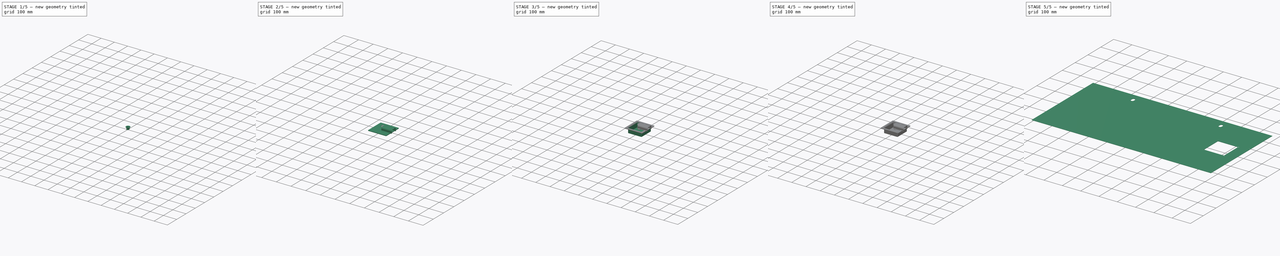
[diagram: build sequence overview — one tinted view per stage of 5, left to right]
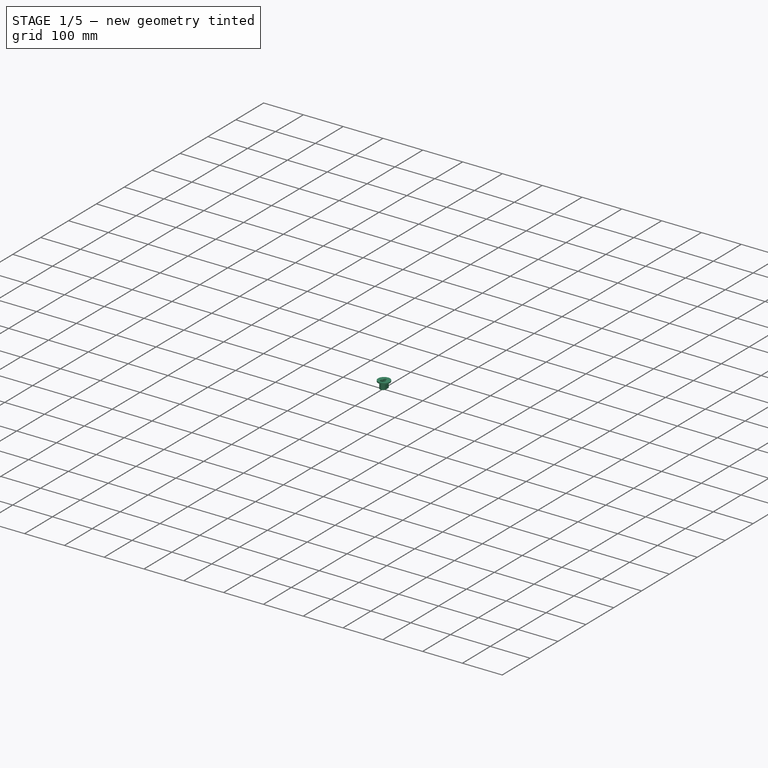
[diagram: stage 1 of 5 — iso view after this stage's code; geometry added in this stage tinted green]
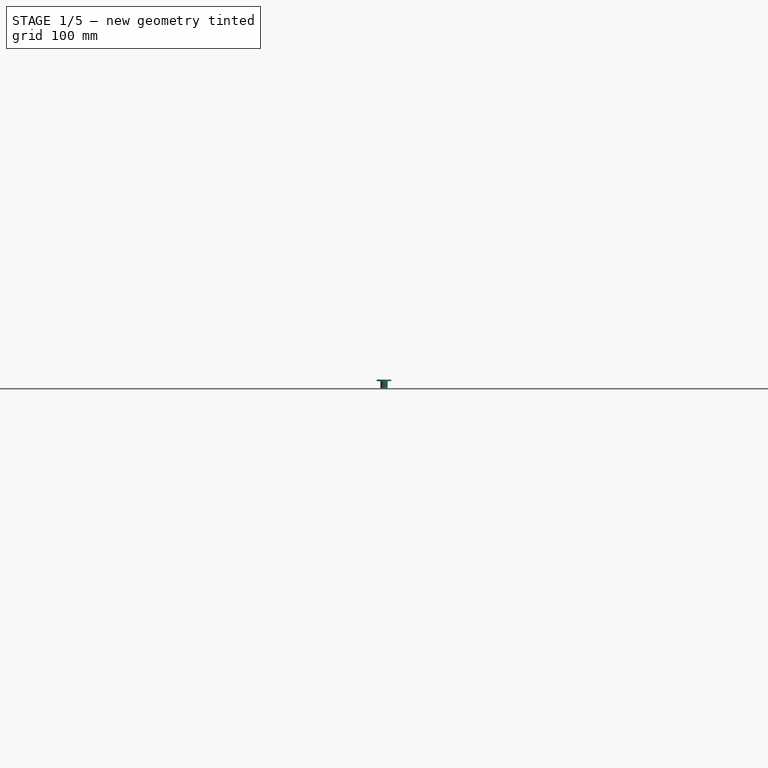
[diagram: stage 1 of 5 — front view after this stage's code; geometry added in this stage tinted green]
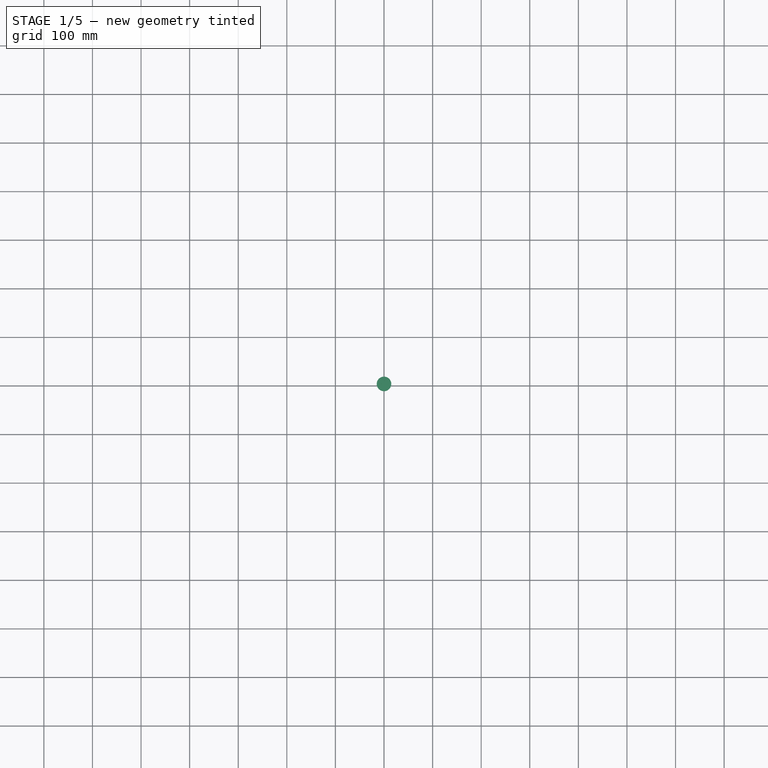
[diagram: stage 1 of 5 — top view after this stage's code; geometry added in this stage tinted green]
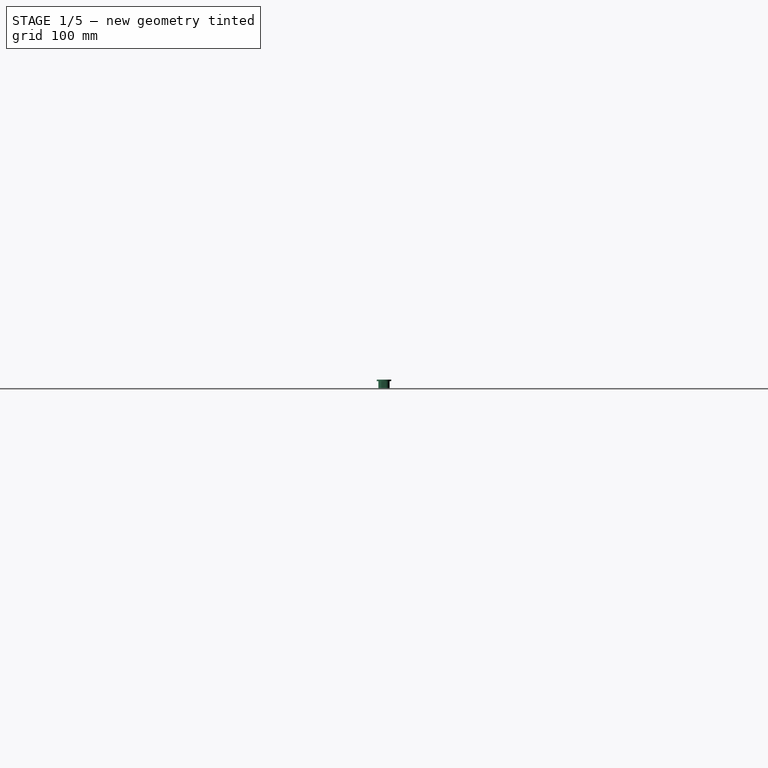
[diagram: stage 1 of 5 — right view after this stage's code; geometry added in this stage tinted green]
FCSTD DOCUMENT  (FreeCAD 0.20R29603 (Git))
Label: RearPanel
License: All rights reserved
LicenseURL: http://en.wikipedia.org/wiki/All_rights_reserved
objects: Sketcher::SketchObject×28, PartDesign::Pocket×16, PartDesign::Pad×11, PartDesign::Body×5, PartDesign::SubShapeBinder×4, PartDesign::Fillet×3, App::LinkGroup×2, PartDesign::Chamfer×2, PartDesign::Groove×1, PartDesign::LinearPattern×1
note: 104 computed .brp shape members not serialized (recipe doc carries the construction recipe); baked Part::Feature solids carry a one-line shape summary decoded from their .brp

FEATURE [Sketcher::SketchObject] Sketch031  label="Sketch1"
  FullyConstrained = true
  MapMode = 5
  Support = -> [XY_Plane003]
  sketch-geometry (4):
    g0: ArcOfCircle CenterX=0 CenterY=8 CenterZ=0 NormalX=0 NormalY=0 NormalZ=1 AngleXU=0 Radius=7.5 StartAngle=0 EndAngle=3.14159
    g1: ArcOfCircle CenterX=0 CenterY=0 CenterZ=0 NormalX=0 NormalY=0 NormalZ=1 AngleXU=0 Radius=7.5 StartAngle=3.14159 EndAngle=6.28319
    g2: LineSegment StartX=-7.5 StartY=8 StartZ=0 EndX=-7.5 EndY=1.8e-15 EndZ=0
    g3: LineSegment StartX=7.5 StartY=-1.8e-15 StartZ=0 EndX=7.5 EndY=8 EndZ=0
  constraints (9):
    c: Tangent(g0,g2) = -1.5708
    c: Tangent(g2,g1) = -1.5708
    c: Tangent(g1,g3) = -1.5708
    c: Tangent(g3,g0) = -1.5708
    c: Equal(g0,g1)
    c: PointOnObject(g0,g-2)
    c: Diameter(g1) = 15
    c: DistanceY(g1,g0) = 8
    c: Coincident(g1,g-1)
FEATURE [PartDesign::Pad] Pad009
  Direction = (0,0,1)
  Length = 15
  Length2 = 10
  Profile = -> Sketch031
  ReferenceAxis = -> Sketch031 [N_Axis]
  Type = 0
FEATURE [Sketcher::SketchObject] Sketch032
  FullyConstrained = true
  MapMode = 5
  Placement = pos=(0,0,15) rot=(0,0,1;0rad)
  Support = -> [Pad009]
  sketch-geometry (4):
    g0: ArcOfCircle CenterX=0 CenterY=0 CenterZ=0 NormalX=0 NormalY=0 NormalZ=1 AngleXU=0 Radius=6 StartAngle=3.14159 EndAngle=6.28319
    g1: ArcOfCircle CenterX=0 CenterY=8 CenterZ=0 NormalX=0 NormalY=0 NormalZ=1 AngleXU=0 Radius=6 StartAngle=6e-16 EndAngle=3.14159
    g2: LineSegment StartX=6 StartY=-1.5e-15 StartZ=0 EndX=6 EndY=8 EndZ=0
    g3: LineSegment StartX=-6 StartY=8 StartZ=0 EndX=-6 EndY=9e-16 EndZ=0
  constraints (9):
    c: Tangent(g0,g2) = -1.5708
    c: Tangent(g2,g1) = -1.5708
    c: Tangent(g1,g3) = -1.5708
    c: Tangent(g3,g0) = -1.5708
    c: Equal(g0,g1)
    c: Coincident(g0,g-1)
    c: PointOnObject(g1,g-2)
    c: DistanceY(g0,g1) = 8
    c: Diameter(g1) = 12
FEATURE [PartDesign::Pocket] Pocket020
  BaseFeature = -> Pad009
  Direction = (0,0,-1)
  Length = 12
  Length2 = 5
  Profile = -> Sketch032
  ReferenceAxis = -> Sketch032 [N_Axis]
  Type = 0
FEATURE [Sketcher::SketchObject] Sketch033
  FullyConstrained = true
  MapMode = 5
  Placement = pos=(0,0,15) rot=(0,0,1;0rad)
  Support = -> [Pocket020]
  sketch-geometry (5):
    g0: Circle CenterX=0 CenterY=4 CenterZ=0 NormalX=0 NormalY=0 NormalZ=1 AngleXU=0 Radius=15
    g1: ArcOfCircle CenterX=0 CenterY=0 CenterZ=0 NormalX=0 NormalY=0 NormalZ=1 AngleXU=0 Radius=6 StartAngle=2.0944 EndAngle=7.33038
    g2: ArcOfCircle CenterX=0 CenterY=8 CenterZ=0 NormalX=0 NormalY=0 NormalZ=1 AngleXU=0 Radius=3 StartAngle=0 EndAngle=3.14159
    g3: LineSegment StartX=3 StartY=8 StartZ=0 EndX=3 EndY=5.19615 EndZ=0
    g4: LineSegment StartX=-3 StartY=8 StartZ=0 EndX=-3 EndY=5.19615 EndZ=0
  constraints (14):
    c: PointOnObject(g0,g-2)
    c: DistanceY(g-1,g0) = 4
    c: Diameter(g0) = 30
    c: Coincident(g1,g-1)
    c: Diameter(g1) = 12
    c: PointOnObject(g2,g-2)
    c: Diameter(g2) = 6
    c: DistanceY(g1,g2) = 8
    c: Vertical(g4)
    c: Vertical(g3)
    c: Tangent(g2,g3) = 1.5708
    c: Tangent(g2,g4) = -1.5708
    c: Coincident(g1,g3)
    c: Coincident(g1,g4)
FEATURE [PartDesign::Pad] Pad010
  BaseFeature = -> Pocket020
  Direction = (0,0,1)
  Length = 3
  Length2 = 10
  Profile = -> Sketch033
  ReferenceAxis = -> Sketch033 [N_Axis]
  Type = 0
FEATURE [PartDesign::Body] Body003  label="HangHole1"
  Group = -> [Sketch031,Pad009,Sketch032,Pocket020,Sketch033,Pad010,Chamfer]
  Origin = -> Origin003
  Placement = pos=(240,190,2) rot=(0,0,1;0rad)
  Tip = -> Chamfer
FEATURE [Sketcher::SketchObject] Sketch034
  FullyConstrained = true
  MapMode = 5
  Support = -> [XY_Plane004]
  sketch-geometry (4):
    g0: ArcOfCircle CenterX=0 CenterY=8 CenterZ=0 NormalX=0 NormalY=0 NormalZ=1 AngleXU=0 Radius=7.5 StartAngle=0 EndAngle=3.14159
    g1: ArcOfCircle CenterX=0 CenterY=0 CenterZ=0 NormalX=0 NormalY=0 NormalZ=1 AngleXU=0 Radius=7.5 StartAngle=3.14159 EndAngle=6.28319
    g2: LineSegment StartX=-7.5 StartY=8 StartZ=0 EndX=-7.5 EndY=1.8e-15 EndZ=0
    g3: LineSegment StartX=7.5 StartY=-1.8e-15 StartZ=0 EndX=7.5 EndY=8 EndZ=0
  constraints (9):
    c: Tangent(g0,g2) = -1.5708
    c: Tangent(g2,g1) = -1.5708
    c: Tangent(g1,g3) = -1.5708
    c: Tangent(g3,g0) = -1.5708
    c: Equal(g0,g1)
    c: PointOnObject(g0,g-2)
    c: Diameter(g1) = 15
    c: DistanceY(g1,g0) = 8
    c: Coincident(g1,g-1)
FEATURE [PartDesign::Pad] Pad011
  Direction = (0,0,1)
  Length = 15
  Length2 = 10
  Profile = -> Sketch034
  ReferenceAxis = -> Sketch034 [N_Axis]
  Type = 0
FEATURE [Sketcher::SketchObject] Sketch035
  FullyConstrained = true
  MapMode = 5
  Placement = pos=(0,0,15) rot=(0,0,1;0rad)
  Support = -> [Pad011]
  sketch-geometry (4):
    g0: ArcOfCircle CenterX=0 CenterY=0 CenterZ=0 NormalX=0 NormalY=0 NormalZ=1 AngleXU=0 Radius=6 StartAngle=3.14159 EndAngle=6.28319
    g1: ArcOfCircle CenterX=0 CenterY=8 CenterZ=0 NormalX=0 NormalY=0 NormalZ=1 AngleXU=0 Radius=6 StartAngle=6e-16 EndAngle=3.14159
    g2: LineSegment StartX=6 StartY=-1.5e-15 StartZ=0 EndX=6 EndY=8 EndZ=0
    g3: LineSegment StartX=-6 StartY=8 StartZ=0 EndX=-6 EndY=9e-16 EndZ=0
  constraints (9):
    c: Tangent(g0,g2) = -1.5708
    c: Tangent(g2,g1) = -1.5708
    c: Tangent(g1,g3) = -1.5708
    c: Tangent(g3,g0) = -1.5708
    c: Equal(g0,g1)
    c: Coincident(g0,g-1)
    c: PointOnObject(g1,g-2)
    c: DistanceY(g0,g1) = 8
    c: Diameter(g1) = 12
FEATURE [PartDesign::Pocket] Pocket021
  BaseFeature = -> Pad011
  Direction = (0,0,-1)
  Length = 12
  Length2 = 5
  Profile = -> Sketch035
  ReferenceAxis = -> Sketch035 [N_Axis]
  Type = 0
FEATURE [Sketcher::SketchObject] Sketch036
  FullyConstrained = true
  MapMode = 5
  Placement = pos=(0,0,15) rot=(0,0,1;0rad)
  Support = -> [Pocket021]
  sketch-geometry (5):
    g0: Circle CenterX=0 CenterY=4 CenterZ=0 NormalX=0 NormalY=0 NormalZ=1 AngleXU=0 Radius=15
    g1: ArcOfCircle CenterX=0 CenterY=0 CenterZ=0 NormalX=0 NormalY=0 NormalZ=1 AngleXU=0 Radius=6 StartAngle=2.0944 EndAngle=7.33038
    g2: ArcOfCircle CenterX=0 CenterY=8 CenterZ=0 NormalX=0 NormalY=0 NormalZ=1 AngleXU=0 Radius=3 StartAngle=0 EndAngle=3.14159
    g3: LineSegment StartX=3 StartY=8 StartZ=0 EndX=3 EndY=5.19615 EndZ=0
    g4: LineSegment StartX=-3 StartY=8 StartZ=0 EndX=-3 EndY=5.19615 EndZ=0
  constraints (14):
    c: PointOnObject(g0,g-2)
    c: DistanceY(g-1,g0) = 4
    c: Diameter(g0) = 30
    c: Coincident(g1,g-1)
    c: Diameter(g1) = 12
    c: PointOnObject(g2,g-2)
    c: Diameter(g2) = 6
    c: DistanceY(g1,g2) = 8
    c: Vertical(g4)
    c: Vertical(g3)
    c: Tangent(g2,g3) = 1.5708
    c: Tangent(g2,g4) = -1.5708
    c: Coincident(g1,g3)
    c: Coincident(g1,g4)
FEATURE [PartDesign::Pad] Pad012
  BaseFeature = -> Pocket021
  Direction = (0,0,1)
  Length = 3
  Length2 = 10
  Profile = -> Sketch036
  ReferenceAxis = -> Sketch036 [N_Axis]
  Type = 0
FEATURE [PartDesign::Chamfer] Chamfer001
  Angle = 45
  Base = -> Pad012 [Edge3]
  BaseFeature = -> Pad012
  ChamferType = 0
  FlipDirection = false
  Size = 1.5
  Size2 = 1
  SupportTransform = false
  UseAllEdges = false
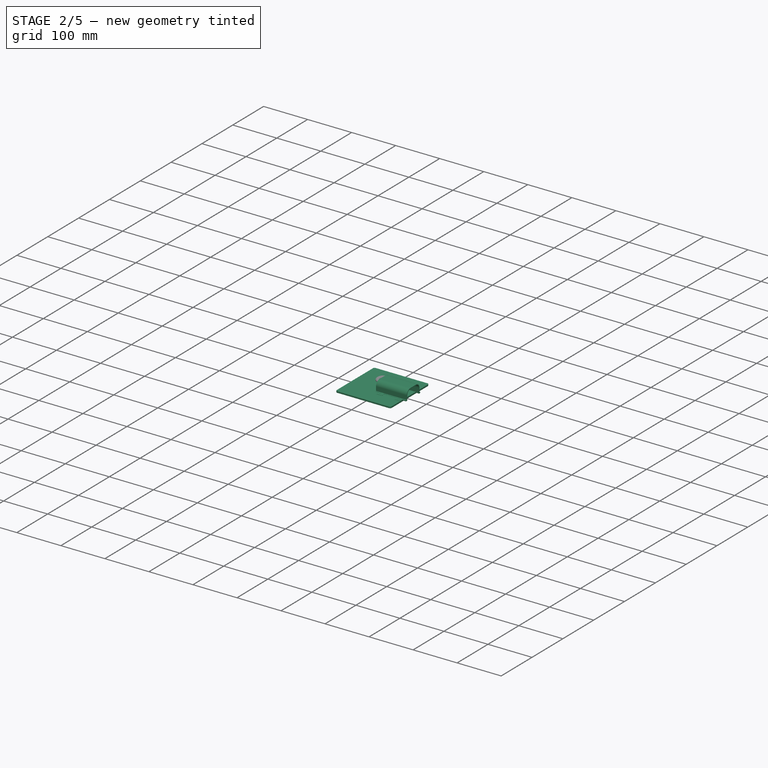
[diagram: stage 2 of 5 — iso view after this stage's code; geometry added in this stage tinted green]
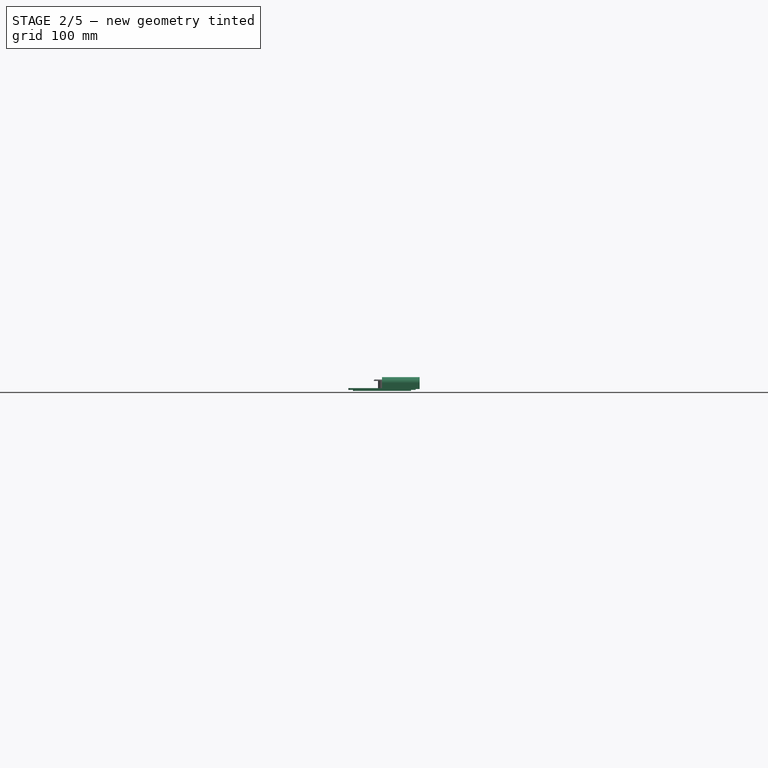
[diagram: stage 2 of 5 — front view after this stage's code; geometry added in this stage tinted green]
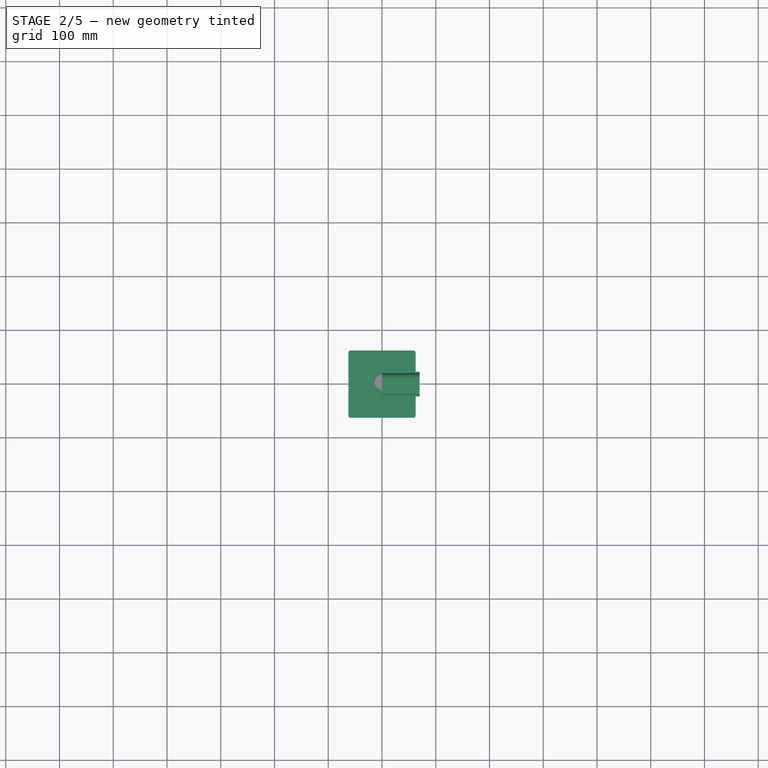
[diagram: stage 2 of 5 — top view after this stage's code; geometry added in this stage tinted green]
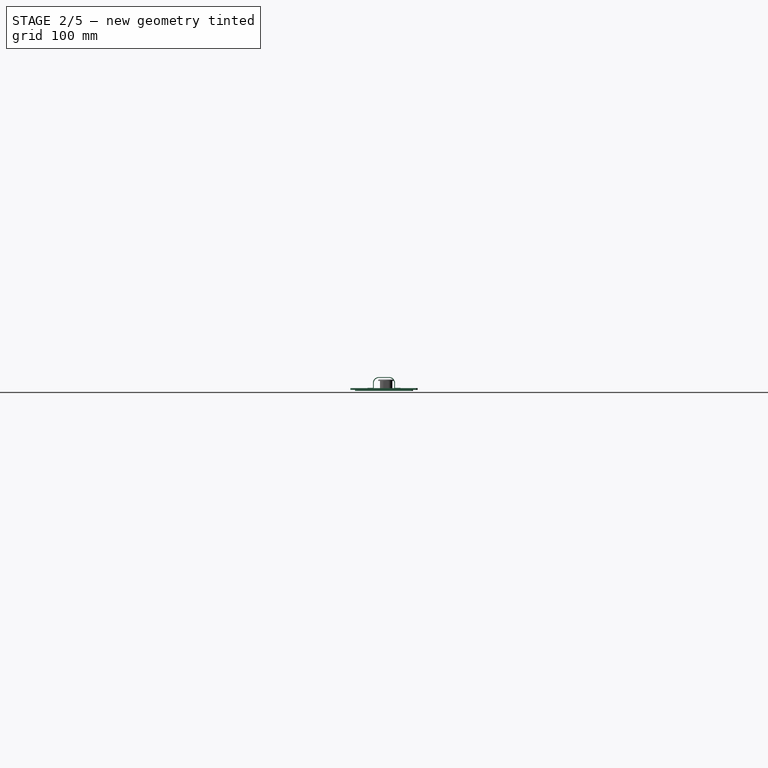
[diagram: stage 2 of 5 — right view after this stage's code; geometry added in this stage tinted green]
FEATURE [PartDesign::SubShapeBinder] Binder001  label="BinderFurosTraseiros"
  BindCopyOnChange = 0
  BindMode = 0
  ClaimChildren = false
  Context = -> Body001 [Binder001.]
  Fuse = false
  MakeFace = true
  OffsetFill = false
  OffsetIntersection = false
  OffsetJoinType = 0
  OffsetOpenResult = false
  PartialLoad = false
  Relative = true
  Support = -> [Body002[Fillet003.Face22,Fillet003.Face23]]
  _Version = 2
FEATURE [Sketcher::SketchObject] Sketch002
  FullyConstrained = true
  MapMode = 5
  Support = -> [XY_Plane001]
  sketch-geometry (8):
    g0: LineSegment StartX=-58.5 StartY=62.5 StartZ=0 EndX=58.5 EndY=62.5 EndZ=0
    g1: LineSegment StartX=62.5 StartY=58.5 StartZ=0 EndX=62.5 EndY=-58.5 EndZ=0
    g2: LineSegment StartX=58.5 StartY=-62.5 StartZ=0 EndX=-58.5 EndY=-62.5 EndZ=0
    g3: LineSegment StartX=-62.5 StartY=-58.5 StartZ=0 EndX=-62.5 EndY=58.5 EndZ=0
    g4: ArcOfCircle CenterX=-58.5 CenterY=58.5 CenterZ=0 NormalX=0 NormalY=0 NormalZ=1 AngleXU=0 Radius=4 StartAngle=1.5708 EndAngle=3.14159
    g5: ArcOfCircle CenterX=58.5 CenterY=58.5 CenterZ=0 NormalX=0 NormalY=0 NormalZ=1 AngleXU=0 Radius=4 StartAngle=-9e-16 EndAngle=1.5708
    g6: ArcOfCircle CenterX=58.5 CenterY=-58.5 CenterZ=0 NormalX=0 NormalY=0 NormalZ=1 AngleXU=0 Radius=4 StartAngle=4.71239 EndAngle=6.28319
    g7: ArcOfCircle CenterX=-58.5 CenterY=-58.5 CenterZ=0 NormalX=0 NormalY=0 NormalZ=1 AngleXU=0 Radius=4 StartAngle=3.14159 EndAngle=4.71239
  constraints (18):
    c: Horizontal(g2)
    c: Vertical(g1)
    c: Vertical(g3)
    c: Tangent(g3,g4) = 1.5708
    c: Tangent(g0,g4) = 1.5708
    c: Tangent(g0,g5) = 1.5708
    c: Tangent(g1,g5) = 1.5708
    c: Tangent(g1,g6) = 1.5708
    c: Tangent(g2,g6) = 1.5708
    c: Tangent(g2,g7) = 1.5708
    c: Tangent(g3,g7) = 1.5708
    c: Equal(g4,g5)
    c: Equal(g5,g6)
    c: Diameter(g5) = 8
    c: DistanceX(g3,g1) = 125
    c: DistanceY(g2,g0) = 125
    c: Symmetric(g0,g0,g-2)
    c: Symmetric(g0,g2,g-1)
FEATURE [PartDesign::Pad] Pad001  label="Flange"
  Direction = (0,0,1)
  Length = 3.2
  Length2 = 10
  Midplane = true
  Profile = -> Sketch002
  ReferenceAxis = -> Sketch002 [N_Axis]
  Type = 0
FEATURE [Sketcher::SketchObject] Sketch003
  FullyConstrained = true
  MapMode = 5
  Placement = pos=(0,0,-1.6) rot=(1,0,0;3.14159rad)
  Support = -> [Pad001]
  sketch-geometry (8):
    g0: LineSegment StartX=-50 StartY=54 StartZ=0 EndX=50 EndY=54 EndZ=0
    g1: LineSegment StartX=54 StartY=50 StartZ=0 EndX=54 EndY=-50 EndZ=0
    g2: LineSegment StartX=50 StartY=-54 StartZ=0 EndX=-50 EndY=-54 EndZ=0
    g3: LineSegment StartX=-54 StartY=-50 StartZ=0 EndX=-54 EndY=50 EndZ=0
    g4: ArcOfCircle CenterX=-50 CenterY=50 CenterZ=0 NormalX=0 NormalY=0 NormalZ=1 AngleXU=0 Radius=4 StartAngle=1.5708 EndAngle=3.14159
    g5: ArcOfCircle CenterX=50 CenterY=50 CenterZ=0 NormalX=0 NormalY=0 NormalZ=1 AngleXU=0 Radius=4 StartAngle=1.31e-14 EndAngle=1.5708
    g6: ArcOfCircle CenterX=50 CenterY=-50 CenterZ=0 NormalX=0 NormalY=0 NormalZ=1 AngleXU=0 Radius=4 StartAngle=4.71239 EndAngle=6.28319
    g7: ArcOfCircle CenterX=-50 CenterY=-50 CenterZ=0 NormalX=0 NormalY=0 NormalZ=1 AngleXU=0 Radius=4 StartAngle=3.14159 EndAngle=4.71239
  constraints (18):
    c: Horizontal(g0)
    c: Horizontal(g2)
    c: Vertical(g3)
    c: Tangent(g3,g4) = 1.5708
    c: Tangent(g0,g4) = 1.5708
    c: Tangent(g0,g5) = 1.5708
    c: Tangent(g1,g5) = 1.5708
    c: Tangent(g1,g6) = 1.5708
    c: Tangent(g2,g6) = 1.5708
    c: Tangent(g2,g7) = 1.5708
    c: Tangent(g3,g7) = 1.5708
    c: Equal(g5,g7)
    c: Equal(g7,g6)
    c: Symmetric(g3,g1,g-2)
    c: Symmetric(g1,g1,g-1)
    c: DistanceY(g2,g0) = 108
    c: DistanceX(g3,g1) = 108
    c: Diameter(g4) = 8
FEATURE [PartDesign::Pad] Pad002  label="CopoBase"
  BaseFeature = -> Pad001
  Direction = (0,0,-1)
  Length = 2
  Length2 = 10
  Profile = -> Sketch003
  ReferenceAxis = -> Sketch003 [N_Axis]
  Type = 0
FEATURE [Sketcher::SketchObject] Sketch022
  FullyConstrained = true
  MapMode = 5
  Placement = pos=(0,0,0) rot=(0.57735,0.57735,0.57735;2.0944rad)
  Support = -> [YZ_Plane002]
  sketch-geometry (16):
    g0: ArcOfCircle CenterX=9.5 CenterY=11.2 CenterZ=0 NormalX=0 NormalY=0 NormalZ=1 AngleXU=0 Radius=9.5 StartAngle=2.1e-15 EndAngle=1.5708
    g1: ArcOfCircle CenterX=-9.5 CenterY=11.2 CenterZ=0 NormalX=0 NormalY=0 NormalZ=1 AngleXU=0 Radius=9.5 StartAngle=1.5708 EndAngle=3.14159
    g2: LineSegment StartX=-9.5 StartY=20.7 StartZ=0 EndX=9.5 EndY=20.7 EndZ=0
    g3: LineSegment StartX=-9.5 StartY=22.2 StartZ=0 EndX=9.5 EndY=22.2 EndZ=0
    g4: LineSegment StartX=-19 StartY=11.2 StartZ=0 EndX=-19 EndY=0 EndZ=0
    g5: LineSegment StartX=-31 StartY=0 StartZ=0 EndX=-31 EndY=2 EndZ=0
    g6: LineSegment StartX=-31 StartY=2 StartZ=0 EndX=-20.5 EndY=2 EndZ=0
    g7: LineSegment StartX=-20.5 StartY=2 StartZ=0 EndX=-20.5 EndY=11.2 EndZ=0
    g8: LineSegment StartX=19 StartY=11.2 StartZ=0 EndX=19 EndY=0 EndZ=0
    g9: LineSegment StartX=-19 StartY=0 StartZ=0 EndX=-31 EndY=0 EndZ=0
    g10: LineSegment StartX=19 StartY=0 StartZ=0 EndX=31 EndY=0 EndZ=0
    g11: LineSegment StartX=31 StartY=0 StartZ=0 EndX=31 EndY=2 EndZ=0
    g12: LineSegment StartX=31 StartY=2 StartZ=0 EndX=20.5 EndY=2 EndZ=0
    g13: LineSegment StartX=20.5 StartY=2 StartZ=0 EndX=20.5 EndY=11.2 EndZ=0
    g14: ArcOfCircle CenterX=-9.5 CenterY=11.2 CenterZ=0 NormalX=0 NormalY=0 NormalZ=1 AngleXU=0 Radius=11 StartAngle=1.5708 EndAngle=3.14159
    g15: ArcOfCircle CenterX=9.5 CenterY=11.2 CenterZ=0 NormalX=0 NormalY=0 NormalZ=1 AngleXU=0 Radius=11 StartAngle=0 EndAngle=1.5708
  constraints (38):
    c: Equal(g0,g1)
    c: Diameter(g0) = 19
    c: Horizontal(g3)
    c: DistanceY(g-1,g1) = 11.2
    c: PointOnObject(g4,g-1)
    c: PointOnObject(g5,g-1)
    c: Vertical(g5)
    c: Coincident(g6,g5)
    c: Horizontal(g6)
    c: Coincident(g7,g6)
    c: Coincident(g9,g4)
    c: Coincident(g9,g5)
    c: Coincident(g10,g8)
    c: PointOnObject(g10,g-1)
    c: Vertical(g11)
    c: Tangent(g1,g2) = 1.5708
    c: Tangent(g0,g2) = 1.5708
    c: Symmetric(g1,g0,g-2)
    c: DistanceX(g1,g0) = 19
    c: Diameter(g15) = 22
    c: Coincident(g14,g1)
    c: Coincident(g15,g0)
    c: Tangent(g3,g14) = 1.5708
    c: Tangent(g3,g15) = 1.5708
    c: Tangent(g15,g13) = -1.5708
    c: Tangent(g7,g14) = 1.5708
    c: Tangent(g1,g4) = -1.5708
    c: Tangent(g0,g8) = 1.5708
    c: Symmetric(g4,g8,g-2)
    c: Vertical(g4)
    c: Symmetric(g6,g12,g-2)
    c: Vertical(g7)
    c: Coincident(g13,g12)
    c: Coincident(g12,g11)
    c: Coincident(g10,g11)
    c: Symmetric(g5,g11,g-2)
    c: DistanceX(g8,g10) = 12
    c: DistanceY(g10,g11) = 2
FEATURE [PartDesign::Pad] Pad006
  Direction = (1,-2e-16,3e-16)
  Length = 70
  Length2 = 10
  Placement = pos=(0,0,0) rot=(0.57735,0.57735,0.57735;2.0944rad)
  Profile = -> Sketch022
  ReferenceAxis = -> Sketch022 [N_Axis]
  Type = 0
FEATURE [Sketcher::SketchObject] Sketch023
  ExternalGeometry = -> [Pad006]
  FullyConstrained = true
  MapMode = 5
  Placement = pos=(-6e-16,9e-16,2) rot=(0,0,-1;1.5708rad)
  Support = -> [Pad006]
  sketch-geometry (24):
    g0: LineSegment StartX=23 StartY=73 StartZ=0 EndX=23 EndY=61.5 EndZ=0
    g1: LineSegment StartX=35 StartY=61.5 StartZ=0 EndX=35 EndY=49.5 EndZ=0
    g2: LineSegment StartX=35 StartY=49.5 StartZ=0 EndX=23 EndY=49.5 EndZ=0
    g3: LineSegment StartX=23 StartY=49.5 StartZ=0 EndX=23 EndY=20.5 EndZ=0
    g4: LineSegment StartX=23 StartY=20.5 StartZ=0 EndX=35 EndY=20.5 EndZ=0
    g5: LineSegment StartX=35 StartY=20.5 StartZ=0 EndX=35 EndY=8.5 EndZ=0
    g6: LineSegment StartX=35 StartY=8.5 StartZ=0 EndX=23 EndY=8.5 EndZ=0
    g7: LineSegment StartX=23 StartY=8.5 StartZ=0 EndX=23 EndY=-3 EndZ=0
    g8: LineSegment StartX=23 StartY=-3 StartZ=0 EndX=46 EndY=-3 EndZ=0
    g9: LineSegment StartX=46 StartY=-3 StartZ=0 EndX=46 EndY=73 EndZ=0
    g10: LineSegment StartX=46 StartY=73 StartZ=0 EndX=23 EndY=73 EndZ=0
    g11: LineSegment StartX=23 StartY=61.5 StartZ=0 EndX=35 EndY=61.5 EndZ=0
    g12: LineSegment StartX=-46 StartY=73 StartZ=0 EndX=-23 EndY=73 EndZ=0
    g13: LineSegment StartX=-23 StartY=73 StartZ=0 EndX=-23 EndY=61.5 EndZ=0
    g14: LineSegment StartX=-35 StartY=61.5 StartZ=0 EndX=-35 EndY=49.5 EndZ=0
    g15: LineSegment StartX=-23 StartY=61.5 StartZ=0 EndX=-35 EndY=61.5 EndZ=0
    g16: LineSegment StartX=-23 StartY=49.5 StartZ=0 EndX=-23 EndY=20.5 EndZ=0
    g17: LineSegment StartX=-23 StartY=20.5 StartZ=0 EndX=-35 EndY=20.5 EndZ=0
    g18: LineSegment StartX=-35 StartY=20.5 StartZ=0 EndX=-35 EndY=8.5 EndZ=0
    g19: LineSegment StartX=-35 StartY=8.5 StartZ=0 EndX=-23 EndY=8.5 EndZ=0
    g20: LineSegment StartX=-23 StartY=8.5 StartZ=0 EndX=-23 EndY=-3 EndZ=0
    g21: LineSegment StartX=-23 StartY=-3 StartZ=0 EndX=-46 EndY=-3 EndZ=0
    g22: LineSegment StartX=-46 StartY=-3 StartZ=0 EndX=-46 EndY=73 EndZ=0
    g23: LineSegment StartX=-35 StartY=49.5 StartZ=0 EndX=-23 EndY=49.5 EndZ=0
  constraints (72):
    c: Vertical(g0)
    c: Vertical(g1)
    c: Coincident(g1,g2)
    c: Horizontal(g2)
    c: Coincident(g2,g3)
    c: Vertical(g3)
    c: Coincident(g3,g4)
    c: Horizontal(g4)
    c: Coincident(g4,g5)
    c: Vertical(g5)
    c: Coincident(g5,g6)
    c: Horizontal(g6)
    c: Coincident(g6,g7)
    c: Vertical(g7)
    c: Coincident(g7,g8)
    c: Horizontal(g8)
    c: Coincident(g8,g9)
    c: Vertical(g9)
    c: Coincident(g9,g10)
    c: Coincident(g10,g0)
    c: Horizontal(g10)
    c: DistanceX(g-1,g7) = 23
    c: Vertical(g6,g3)
    c: Vertical(g3,g0)
    c: DistanceY(g5,g4) = 12
    c: Equal(g5,g1)
    c: Vertical(g1,g5)
    c: DistanceX(g2,g1) = 12
    c: DistanceX(g0,g9) = 23
    c: DistanceY(g8,g9) = 76
    c: Equal(g7,g0)
    c: DistanceY(g3,g3) = 29
    c: DistanceY(g7,g-1) = 3
    c: Coincident(g11,g0)
    c: Coincident(g11,g1)
    c: Horizontal(g11)
    c: Vertical(g13)
    c: Vertical(g14)
    c: Vertical(g16)
    c: Coincident(g16,g17)
    c: Horizontal(g17)
    c: Coincident(g17,g18)
    c: Vertical(g18)
    c: Coincident(g18,g19)
    c: Horizontal(g19)
    c: Coincident(g19,g20)
    c: Vertical(g20)
    c: Coincident(g20,g21)
    c: Horizontal(g21)
    c: Coincident(g21,g22)
    c: Vertical(g22)
    c: Coincident(g22,g12)
    c: Coincident(g12,g13)
    c: Horizontal(g12)
    c: Equal(g18,g14)
    c: Equal(g20,g13)
    c: Coincident(g15,g13)
    c: Coincident(g15,g14)
    c: Horizontal(g15)
    c: Coincident(g23,g14)
    c: Coincident(g23,g16)
    c: Horizontal(g23)
    c: Equal(g10,g12)
    c: Equal(g22,g9)
    c: Equal(g21,g8)
    c: Equal(g20,g7)
    c: Equal(g19,g6)
    c: Equal(g16,g3)
    c: Equal(g23,g2)
    c: Vertical(g13,g16)
    c: DistanceX(g20,g-1) = 23
    c: Horizontal(g19,g6)
FEATURE [PartDesign::Pocket] Pocket014
  BaseFeature = -> Pad006
  Direction = (4e-16,-6e-16,-1)
  Length = 5
  Length2 = 5
  Placement = pos=(0,0,0) rot=(0.57735,0.57735,0.57735;2.0944rad)
  Profile = -> Sketch023
  ReferenceAxis = -> Sketch023 [N_Axis]
  Type = 1
FEATURE [Sketcher::SketchObject] Sketch024
  FullyConstrained = true
  MapMode = 5
  Placement = pos=(-6e-16,9e-16,2) rot=(0,0,-1;1.5708rad)
  Support = -> [Pocket014]
  sketch-geometry (4):
    g0: Circle CenterX=26 CenterY=14 CenterZ=0 NormalX=0 NormalY=0 NormalZ=1 AngleXU=0 Radius=1.3
    g1: Circle CenterX=-26 CenterY=14 CenterZ=0 NormalX=0 NormalY=0 NormalZ=1 AngleXU=0 Radius=1.3
    g2: Circle CenterX=26 CenterY=55.5 CenterZ=0 NormalX=0 NormalY=0 NormalZ=1 AngleXU=0 Radius=1.3
    g3: Circle CenterX=-26 CenterY=55.5 CenterZ=0 NormalX=0 NormalY=0 NormalZ=1 AngleXU=0 Radius=1.3
  constraints (10):
    c: DistanceX(g-1,g0) = 26
    c: Vertical(g2,g0)
    c: Symmetric(g0,g1,g-2)
    c: Symmetric(g2,g3,g-2)
    c: DistanceY(g-1,g0) = 14
    c: DistanceY(g0,g2) = 41.5
    c: Equal(g2,g0)
    c: Equal(g0,g3)
    c: Equal(g3,g1)
    c: Diameter(g2) = 2.6
FEATURE [PartDesign::Pocket] Pocket002
  BaseFeature = -> Pocket014
  Direction = (7e-16,-7e-16,-1)
  Length = 5
  Length2 = 5
  Placement = pos=(0,0,0) rot=(0.57735,0.57735,0.57735;2.0944rad)
  Profile = -> Sketch024
  ReferenceAxis = -> Sketch024 [N_Axis]
  Type = 1
FEATURE [Sketcher::SketchObject] Sketch025
  ExternalGeometry = -> [Pocket002]
  FullyConstrained = true
  MapMode = 5
  Placement = pos=(-6e-16,9e-16,2) rot=(0,0,-1;1.5708rad)
  Support = -> [Pocket002]
  sketch-geometry (4):
    g0: Circle CenterX=26 CenterY=55.5 CenterZ=0 NormalX=0 NormalY=0 NormalZ=1 AngleXU=0 Radius=2.25
    g1: Circle CenterX=26 CenterY=14 CenterZ=0 NormalX=0 NormalY=0 NormalZ=1 AngleXU=0 Radius=2.25
    g2: Circle CenterX=-26 CenterY=55.5 CenterZ=0 NormalX=0 NormalY=0 NormalZ=1 AngleXU=0 Radius=2.25
    g3: Circle CenterX=-26 CenterY=14 CenterZ=0 NormalX=0 NormalY=0 NormalZ=1 AngleXU=0 Radius=2.25
  constraints (8):
    c: Coincident(g0,g-3)
    c: Coincident(g1,g-4)
    c: Coincident(g2,g-5)
    c: Coincident(g3,g-6)
    c: Equal(g0,g1)
    c: Equal(g1,g3)
    c: Equal(g3,g2)
    c: Diameter(g0) = 4.5
FEATURE [PartDesign::Pocket] Pocket015
  BaseFeature = -> Pocket002
  Direction = (1.1e-15,-8e-16,-1)
  Length = 1
  Length2 = 5
  Placement = pos=(0,0,0) rot=(0.57735,0.57735,0.57735;2.0944rad)
  Profile = -> Sketch025
  ReferenceAxis = -> Sketch025 [N_Axis]
  Type = 0
FEATURE [PartDesign::Chamfer] Chamfer
  Angle = 45
  Base = -> Pad010 [Edge3]
  BaseFeature = -> Pad010
  ChamferType = 0
  FlipDirection = false
  Size = 1.5
  Size2 = 1
  SupportTransform = false
  UseAllEdges = false
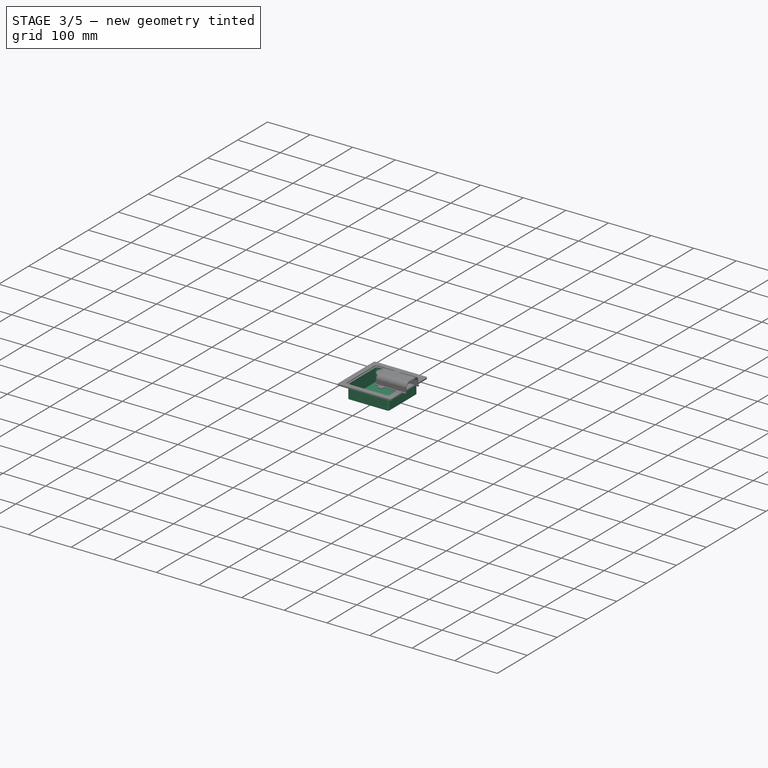
[diagram: stage 3 of 5 — iso view after this stage's code; geometry added in this stage tinted green]
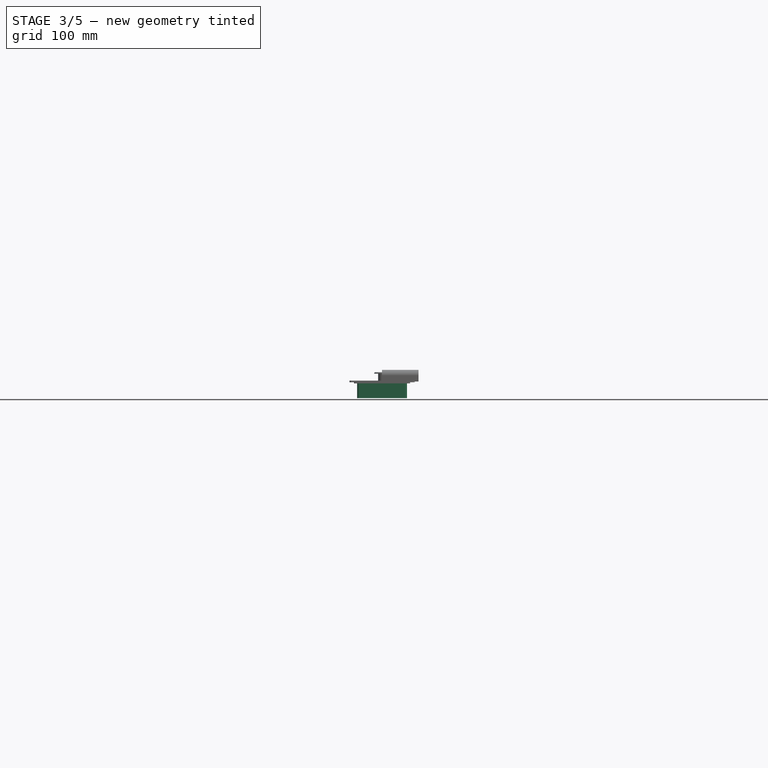
[diagram: stage 3 of 5 — front view after this stage's code; geometry added in this stage tinted green]
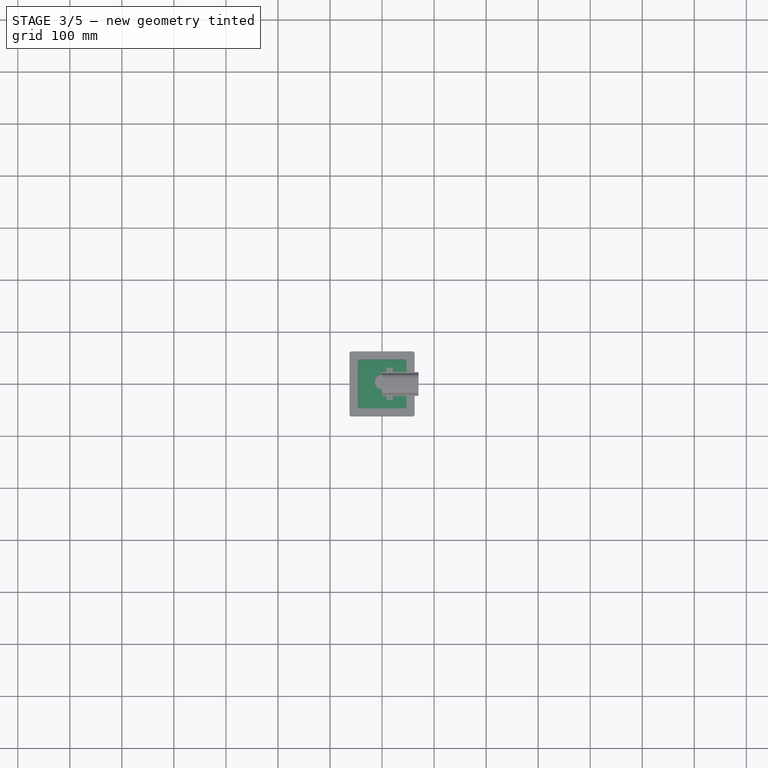
[diagram: stage 3 of 5 — top view after this stage's code; geometry added in this stage tinted green]
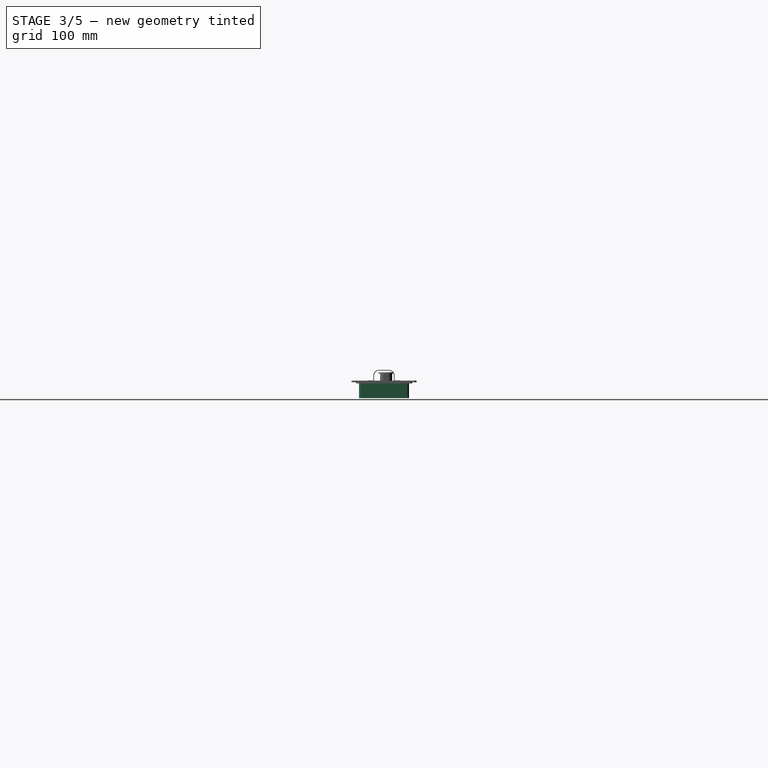
[diagram: stage 3 of 5 — right view after this stage's code; geometry added in this stage tinted green]
FEATURE [Sketcher::SketchObject] Sketch004
  FullyConstrained = true
  MapMode = 5
  Placement = pos=(0,0,-3.6) rot=(1,0,0;3.14159rad)
  Support = -> [Pad002]
  sketch-geometry (8):
    g0: LineSegment StartX=-44 StartY=48 StartZ=0 EndX=44 EndY=48 EndZ=0
    g1: LineSegment StartX=48 StartY=44 StartZ=0 EndX=48 EndY=-44 EndZ=0
    g2: LineSegment StartX=44 StartY=-48 StartZ=0 EndX=-44 EndY=-48 EndZ=0
    g3: LineSegment StartX=-48 StartY=-44 StartZ=0 EndX=-48 EndY=44 EndZ=0
    g4: ArcOfCircle CenterX=-44 CenterY=44 CenterZ=0 NormalX=0 NormalY=0 NormalZ=1 AngleXU=0 Radius=4 StartAngle=1.5708 EndAngle=3.14159
    g5: ArcOfCircle CenterX=44 CenterY=44 CenterZ=0 NormalX=0 NormalY=0 NormalZ=1 AngleXU=0 Radius=4 StartAngle=0 EndAngle=1.5708
    g6: ArcOfCircle CenterX=44 CenterY=-44 CenterZ=0 NormalX=0 NormalY=0 NormalZ=1 AngleXU=0 Radius=4 StartAngle=4.71239 EndAngle=6.28319
    g7: ArcOfCircle CenterX=-44 CenterY=-44 CenterZ=0 NormalX=0 NormalY=0 NormalZ=1 AngleXU=0 Radius=4 StartAngle=3.14159 EndAngle=4.71239
  constraints (18):
    c: Horizontal(g2)
    c: Vertical(g1)
    c: Tangent(g3,g4) = 1.5708
    c: Tangent(g0,g4) = 1.5708
    c: Tangent(g0,g5) = 1.5708
    c: Tangent(g1,g5) = 1.5708
    c: Tangent(g1,g6) = 1.5708
    c: Tangent(g2,g6) = 1.5708
    c: Tangent(g2,g7) = 1.5708
    c: Tangent(g3,g7) = 1.5708
    c: Equal(g4,g5)
    c: Equal(g5,g6)
    c: Equal(g6,g7)
    c: Symmetric(g0,g0,g-2)
    c: Symmetric(g3,g3,g-1)
    c: Diameter(g4) = 8
    c: DistanceY(g2,g0) = 96
    c: DistanceX(g3,g1) = 96
FEATURE [PartDesign::Pad] Pad003  label="CopoExtendido"
  BaseFeature = -> Pad002
  Direction = (0,0,-1)
  Length = 28.4
  Length2 = 10
  Profile = -> Sketch004
  ReferenceAxis = -> Sketch004 [N_Axis]
  Type = 0
FEATURE [Sketcher::SketchObject] Sketch005
  FullyConstrained = true
  MapMode = 5
  Placement = pos=(0,0,1.6) rot=(0,0,1;0rad)
  Support = -> [Pad003]
  sketch-geometry (8):
    g0: LineSegment StartX=-46.5 StartY=50.5 StartZ=0 EndX=46.5 EndY=50.5 EndZ=0
    g1: LineSegment StartX=50.5 StartY=46.5 StartZ=0 EndX=50.5 EndY=-46.5 EndZ=0
    g2: LineSegment StartX=46.5 StartY=-50.5 StartZ=0 EndX=-46.5 EndY=-50.5 EndZ=0
    g3: LineSegment StartX=-50.5 StartY=-46.5 StartZ=0 EndX=-50.5 EndY=46.5 EndZ=0
    g4: ArcOfCircle CenterX=-46.5 CenterY=46.5 CenterZ=0 NormalX=0 NormalY=0 NormalZ=1 AngleXU=0 Radius=4 StartAngle=1.5708 EndAngle=3.14159
    g5: ArcOfCircle CenterX=46.5 CenterY=46.5 CenterZ=0 NormalX=0 NormalY=0 NormalZ=1 AngleXU=0 Radius=4 StartAngle=-9e-16 EndAngle=1.5708
    g6: ArcOfCircle CenterX=46.5 CenterY=-46.5 CenterZ=0 NormalX=0 NormalY=0 NormalZ=1 AngleXU=0 Radius=4 StartAngle=4.71239 EndAngle=6.28319
    g7: ArcOfCircle CenterX=-46.5 CenterY=-46.5 CenterZ=0 NormalX=0 NormalY=0 NormalZ=1 AngleXU=0 Radius=4 StartAngle=3.14159 EndAngle=4.71239
  constraints (18):
    c: Horizontal(g2)
    c: Vertical(g1)
    c: Tangent(g3,g4) = 1.5708
    c: Tangent(g0,g4) = 1.5708
    c: Tangent(g0,g5) = 1.5708
    c: Tangent(g1,g5) = 1.5708
    c: Tangent(g1,g6) = 1.5708
    c: Tangent(g2,g6) = 1.5708
    c: Tangent(g2,g7) = 1.5708
    c: Tangent(g3,g7) = 1.5708
    c: Equal(g4,g5)
    c: Equal(g5,g6)
    c: Equal(g6,g7)
    c: Symmetric(g0,g0,g-2)
    c: Symmetric(g3,g3,g-1)
    c: Diameter(g4) = 8
    c: DistanceY(g2,g0) = 101
    c: DistanceX(g3,g1) = 101
FEATURE [PartDesign::Pocket] Pocket001  label="CavaTampa"
  BaseFeature = -> Pad003
  Direction = (0,0,-1)
  Length = 2
  Length2 = 5
  Profile = -> Sketch005
  ReferenceAxis = -> Sketch005 [N_Axis]
  Type = 0
FEATURE [Sketcher::SketchObject] Sketch006
  FullyConstrained = true
  MapMode = 5
  Placement = pos=(0,0,-0.4) rot=(0,0,1;0rad)
  Support = -> [Pocket001]
  sketch-geometry (8):
    g0: LineSegment StartX=-43 StartY=47 StartZ=0 EndX=43 EndY=47 EndZ=0
    g1: LineSegment StartX=47 StartY=43 StartZ=0 EndX=47 EndY=-43 EndZ=0
    g2: LineSegment StartX=43 StartY=-47 StartZ=0 EndX=-43 EndY=-47 EndZ=0
    g3: LineSegment StartX=-47 StartY=-43 StartZ=0 EndX=-47 EndY=43 EndZ=0
    g4: ArcOfCircle CenterX=-43 CenterY=43 CenterZ=0 NormalX=0 NormalY=0 NormalZ=1 AngleXU=0 Radius=4 StartAngle=1.5708 EndAngle=3.14159
    g5: ArcOfCircle CenterX=43 CenterY=43 CenterZ=0 NormalX=0 NormalY=0 NormalZ=1 AngleXU=0 Radius=4 StartAngle=0 EndAngle=1.5708
    g6: ArcOfCircle CenterX=43 CenterY=-43 CenterZ=0 NormalX=0 NormalY=0 NormalZ=1 AngleXU=0 Radius=4 StartAngle=4.71239 EndAngle=6.28319
    g7: ArcOfCircle CenterX=-43 CenterY=-43 CenterZ=0 NormalX=0 NormalY=0 NormalZ=1 AngleXU=0 Radius=4 StartAngle=3.14159 EndAngle=4.71239
  constraints (18):
    c: Horizontal(g2)
    c: Vertical(g1)
    c: Tangent(g3,g4) = 1.5708
    c: Tangent(g0,g4) = 1.5708
    c: Tangent(g0,g5) = 1.5708
    c: Tangent(g1,g5) = 1.5708
    c: Tangent(g1,g6) = 1.5708
    c: Tangent(g2,g6) = 1.5708
    c: Tangent(g2,g7) = 1.5708
    c: Tangent(g3,g7) = 1.5708
    c: Equal(g4,g5)
    c: Equal(g5,g6)
    c: Equal(g6,g7)
    c: Diameter(g4) = 8
    c: Symmetric(g3,g3,g-1)
    c: Symmetric(g0,g0,g-2)
    c: DistanceX(g3,g1) = 94
    c: DistanceY(g2,g0) = 94
FEATURE [Sketcher::SketchObject] Sketch007
  FullyConstrained = true
  MapMode = 5
  Placement = pos=(-2.7e-14,50.5,0) rot=(1,0,0;1.5708rad)
  sketch-geometry (8):
    g0: LineSegment StartX=25 StartY=0.8 StartZ=0 EndX=30 EndY=0.8 EndZ=0
    g1: LineSegment StartX=30 StartY=0.8 StartZ=0 EndX=30 EndY=-0.4 EndZ=0
    g2: LineSegment StartX=30 StartY=-0.4 StartZ=0 EndX=25 EndY=-0.4 EndZ=0
    g3: LineSegment StartX=25 StartY=-0.4 StartZ=0 EndX=25 EndY=0.8 EndZ=0
    g4: LineSegment StartX=-25 StartY=0.8 StartZ=0 EndX=-30 EndY=0.8 EndZ=0
    g5: LineSegment StartX=-25 StartY=-0.4 StartZ=0 EndX=-25 EndY=0.8 EndZ=0
    g6: LineSegment StartX=-30 StartY=0.8 StartZ=0 EndX=-30 EndY=-0.4 EndZ=0
    g7: LineSegment StartX=-30 StartY=-0.4 StartZ=0 EndX=-25 EndY=-0.4 EndZ=0
  constraints (24):
    c: Coincident(g0,g1)
    c: Coincident(g1,g2)
    c: Coincident(g2,g3)
    c: Coincident(g3,g0)
    c: Horizontal(g0)
    c: Horizontal(g2)
    c: Vertical(g1)
    c: Vertical(g3)
    c: DistanceX(g0,g0) = 5
    c: DistanceX(g-1,g2) = 25
    c: Coincident(g4,g6)
    c: Coincident(g6,g7)
    c: Coincident(g7,g5)
    c: Coincident(g5,g4)
    c: Horizontal(g4)
    c: Horizontal(g7)
    c: Vertical(g6)
    c: Vertical(g5)
    c: DistanceX(g5,g-1) = 25
    c: Horizontal(g5,g2)
    c: DistanceX(g4,g4) = 5
    c: DistanceY(g6,g4) = 1.2
    c: DistanceY(g-1,g4) = 0.8
    c: Equal(g6,g1)
FEATURE [PartDesign::Pocket] Pocket003  label="CavaTravas1"
  BaseFeature = -> Pocket001
  Direction = (-1e-15,1,-2e-16)
  Length = 2.4
  Length2 = 5
  Profile = -> Sketch007
  ReferenceAxis = -> Sketch007 [N_Axis]
  Type = 0
FEATURE [Sketcher::SketchObject] Sketch008
  ExternalGeometry = -> [Pocket003]
  FullyConstrained = true
  MapMode = 5
  Placement = pos=(0,-50.5,0) rot=(0,0.707107,0.707107;3.14159rad)
  Support = -> [Pocket003]
  sketch-geometry (8):
    g0: LineSegment StartX=25 StartY=0.8 StartZ=0 EndX=30 EndY=0.8 EndZ=0
    g1: LineSegment StartX=30 StartY=0.8 StartZ=0 EndX=30 EndY=-0.4 EndZ=0
    g2: LineSegment StartX=30 StartY=-0.4 StartZ=0 EndX=25 EndY=-0.4 EndZ=0
    g3: LineSegment StartX=25 StartY=-0.4 StartZ=0 EndX=25 EndY=0.8 EndZ=0
    g4: LineSegment StartX=-25 StartY=0.8 StartZ=0 EndX=-30 EndY=0.8 EndZ=0
    g5: LineSegment StartX=-30 StartY=0.8 StartZ=0 EndX=-30 EndY=-0.4 EndZ=0
    g6: LineSegment StartX=-30 StartY=-0.4 StartZ=0 EndX=-25 EndY=-0.4 EndZ=0
    g7: LineSegment StartX=-25 StartY=-0.4 StartZ=0 EndX=-25 EndY=0.8 EndZ=0
  constraints (24):
    c: Coincident(g0,g1)
    c: Coincident(g1,g2)
    c: Coincident(g2,g3)
    c: Coincident(g3,g0)
    c: Horizontal(g0)
    c: Horizontal(g2)
    c: Vertical(g1)
    c: Vertical(g3)
    c: Horizontal(g1,g-4)
    c: DistanceY(g0,g-3) = 0.8
    c: DistanceX(g-1,g2) = 25
    c: DistanceX(g0,g0) = 5
    c: Coincident(g4,g5)
    c: Coincident(g5,g6)
    c: Coincident(g6,g7)
    c: Coincident(g7,g4)
    c: Horizontal(g4)
    c: Horizontal(g6)
    c: Vertical(g5)
    c: Vertical(g7)
    c: DistanceX(g6,g-1) = 25
    c: DistanceX(g4,g4) = 5
    c: DistanceY(g4,g-3) = 0.8
    c: Horizontal(g5,g-4)
FEATURE [PartDesign::Pocket] Pocket004  label="CavaTravas2"
  BaseFeature = -> Pocket003
  Direction = (0,-1,2e-16)
  Length = 2.4
  Length2 = 5
  Profile = -> Sketch008
  ReferenceAxis = -> Sketch008 [N_Axis]
  Type = 0
FEATURE [PartDesign::Pocket] Pocket009  label="CavaPrincipal"
  BaseFeature = -> Pocket004
  Direction = (0,0,-1)
  Length = 30.34
  Length2 = 5
  Profile = -> Sketch006
  ReferenceAxis = -> Sketch006 [N_Axis]
  Type = 0
FEATURE [Sketcher::SketchObject] Sketch018
  FullyConstrained = true
  MapMode = 5
  Placement = pos=(-2.7e-14,50.5,0) rot=(1,0,0;1.5708rad)
  sketch-geometry (4):
    g0: ArcOfCircle CenterX=-5 CenterY=2.5 CenterZ=0 NormalX=0 NormalY=0 NormalZ=1 AngleXU=0 Radius=2.5 StartAngle=1.5708 EndAngle=4.71239
    g1: ArcOfCircle CenterX=5 CenterY=2.5 CenterZ=0 NormalX=0 NormalY=0 NormalZ=1 AngleXU=0 Radius=2.5 StartAngle=4.71239 EndAngle=7.85398
    g2: LineSegment StartX=-5 StartY=0 StartZ=0 EndX=5 EndY=0 EndZ=0
    g3: LineSegment StartX=5 StartY=5 StartZ=0 EndX=-5 EndY=5 EndZ=0
  constraints (9):
    c: Tangent(g0,g2) = -1.5708
    c: Tangent(g2,g1) = -1.5708
    c: Tangent(g1,g3) = -1.5708
    c: Tangent(g3,g0) = -1.5708
    c: Equal(g0,g1)
    c: Diameter(g0) = 5
    c: DistanceX(g0,g1) = 10
    c: Horizontal(g0,g-1)
    c: Symmetric(g0,g1,g-2)
FEATURE [PartDesign::Groove] Groove
  Angle = 360
  Axis = (-1,-5e-16,0)
  Base = (5,50.5,5)
  BaseFeature = -> Pocket009
  Profile = -> Sketch018
  ReferenceAxis = -> Sketch018 [Edge4]
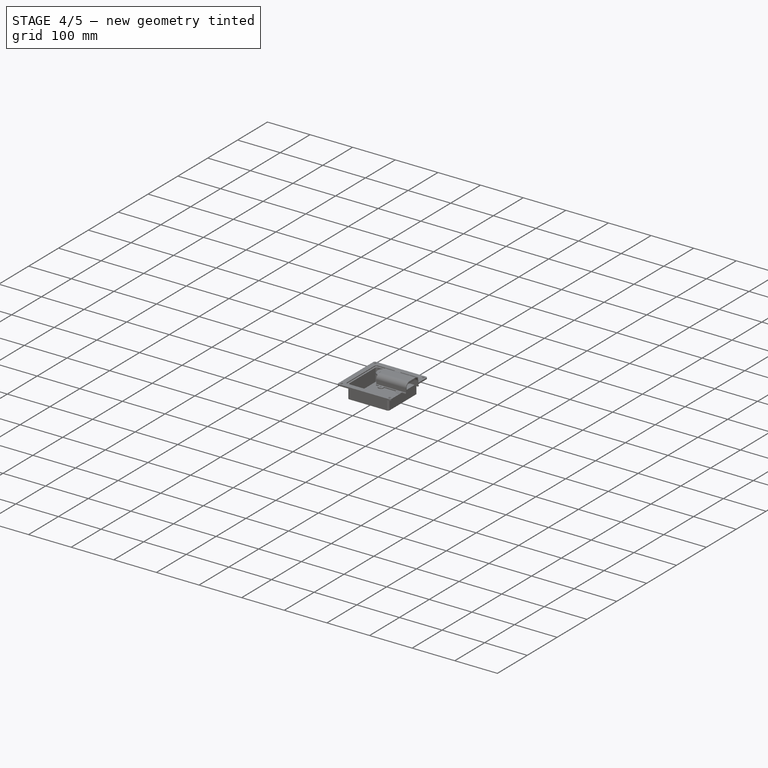
[diagram: stage 4 of 5 — iso view after this stage's code; geometry added in this stage tinted green]
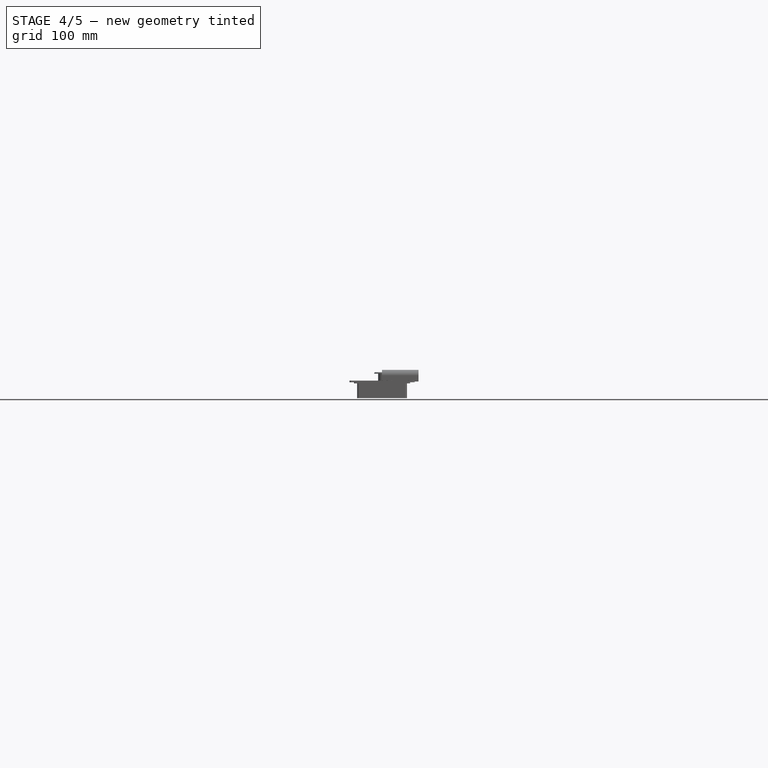
[diagram: stage 4 of 5 — front view after this stage's code; geometry added in this stage tinted green]
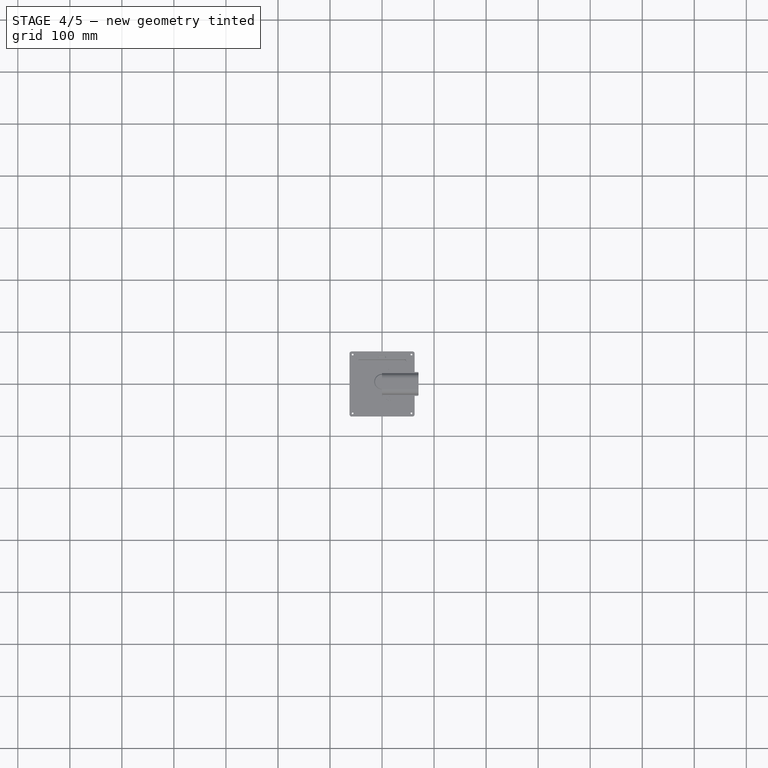
[diagram: stage 4 of 5 — top view after this stage's code; geometry added in this stage tinted green]
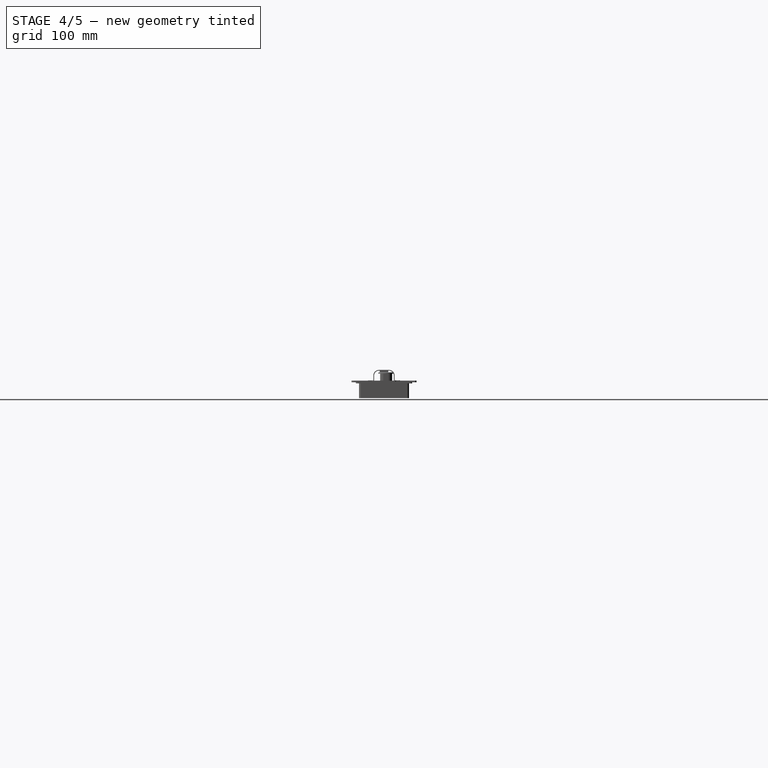
[diagram: stage 4 of 5 — right view after this stage's code; geometry added in this stage tinted green]
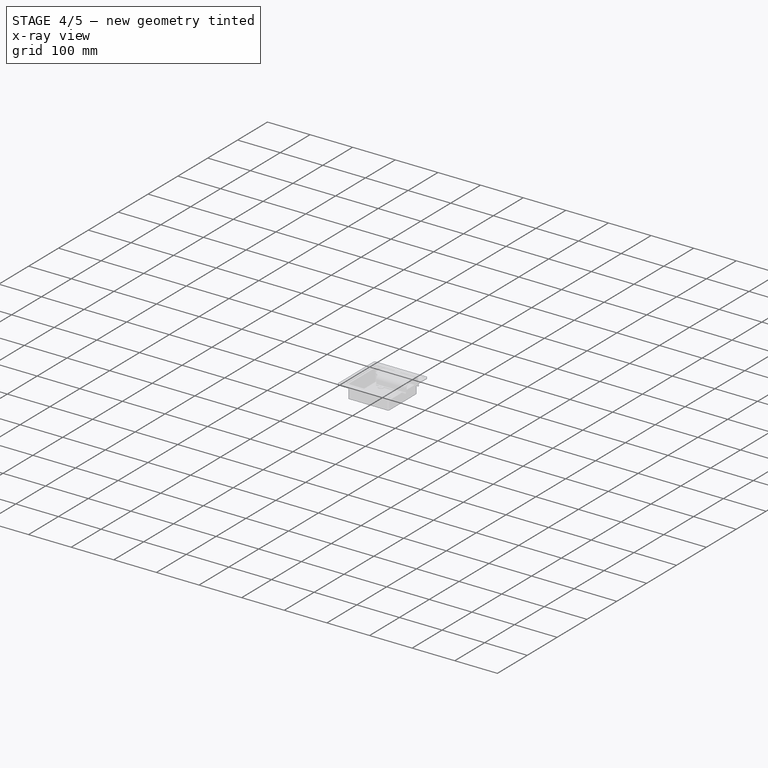
[diagram: stage 4 of 5 — x-ray composite at the iso view; earlier geometry ghosted, this stage's added geometry solid]
FEATURE [Sketcher::SketchObject] Sketch019
  ExternalGeometry = -> [Groove]
  FullyConstrained = true
  MapMode = 5
  Placement = pos=(0,0,1.6) rot=(0,0,1;0rad)
  Support = -> [Groove]
  sketch-geometry (4):
    g0: Circle CenterX=-56.5 CenterY=56.5 CenterZ=0 NormalX=0 NormalY=0 NormalZ=1 AngleXU=0 Radius=3
    g1: Circle CenterX=56.5 CenterY=56.5 CenterZ=0 NormalX=0 NormalY=0 NormalZ=1 AngleXU=0 Radius=3
    g2: Circle CenterX=-56.5 CenterY=-56.5 CenterZ=0 NormalX=0 NormalY=0 NormalZ=1 AngleXU=0 Radius=3
    g3: Circle CenterX=56.5 CenterY=-56.5 CenterZ=0 NormalX=0 NormalY=0 NormalZ=1 AngleXU=0 Radius=3
  constraints (9):
    c: DistanceX(g-3,g0) = 2
    c: DistanceY(g0,g-3) = 2
    c: Diameter(g0) = 6
    c: Equal(g0,g1)
    c: Equal(g1,g3)
    c: Equal(g3,g2)
    c: Symmetric(g0,g1,g-2)
    c: Symmetric(g0,g2,g-1)
    c: Symmetric(g2,g3,g-2)
FEATURE [PartDesign::Pocket] Pocket011  label="AlojaCabecaM3"
  BaseFeature = -> Groove
  Direction = (0,0,-1)
  Length = 0.8
  Length2 = 5
  Profile = -> Sketch019
  ReferenceAxis = -> Sketch019 [N_Axis]
  Type = 0
FEATURE [Sketcher::SketchObject] Sketch020
  ExternalGeometry = -> [Pocket011]
  FullyConstrained = true
  MapMode = 5
  Placement = pos=(0,0,1.6) rot=(0,0,1;0rad)
  Support = -> [Pocket011]
  sketch-geometry (4):
    g0: Circle CenterX=-56.5 CenterY=56.5 CenterZ=0 NormalX=0 NormalY=0 NormalZ=1 AngleXU=0 Radius=1.7
    g1: Circle CenterX=56.5 CenterY=56.5 CenterZ=0 NormalX=0 NormalY=0 NormalZ=1 AngleXU=0 Radius=1.7
    g2: Circle CenterX=56.5 CenterY=-56.5 CenterZ=0 NormalX=0 NormalY=0 NormalZ=1 AngleXU=0 Radius=1.7
    g3: Circle CenterX=-56.5 CenterY=-56.5 CenterZ=0 NormalX=0 NormalY=0 NormalZ=1 AngleXU=0 Radius=1.7
  constraints (8):
    c: Coincident(g0,g-3)
    c: Coincident(g1,g-4)
    c: Coincident(g2,g-6)
    c: Coincident(g3,g-5)
    c: Equal(g2,g3)
    c: Equal(g3,g1)
    c: Equal(g1,g0)
    c: Diameter(g0) = 3.4
FEATURE [PartDesign::Pocket] Pocket012  label="FurosM3"
  BaseFeature = -> Pocket011
  Direction = (0,0,-1)
  Length = 5
  Length2 = 5
  Profile = -> Sketch020
  ReferenceAxis = -> Sketch020 [N_Axis]
  Type = 2
FEATURE [Sketcher::SketchObject] Sketch026
  ExternalGeometry = -> [Pocket015]
  FullyConstrained = true
  MapMode = 5
  Placement = pos=(0,0,0) rot=(0.57735,0.57735,0.57735;2.0944rad)
  Support = -> [YZ_Plane002]
  sketch-geometry (6):
    g0: LineSegment StartX=-8.5 StartY=21.7 StartZ=0 EndX=8.5 EndY=21.7 EndZ=0
    g1: LineSegment StartX=-8.5 StartY=21.7 StartZ=0 EndX=-8.5 EndY=19.2 EndZ=0
    g2: LineSegment StartX=-8.5 StartY=19.2 StartZ=0 EndX=-7 EndY=17.7 EndZ=0
    g3: LineSegment StartX=-7 StartY=17.7 StartZ=0 EndX=7 EndY=17.7 EndZ=0
    g4: LineSegment StartX=7 StartY=17.7 StartZ=0 EndX=8.5 EndY=19.2 EndZ=0
    g5: LineSegment StartX=8.5 StartY=19.2 StartZ=0 EndX=8.5 EndY=21.7 EndZ=0
  constraints (16):
    c: Coincident(g1,g0)
    c: Vertical(g1)
    c: Coincident(g5,g0)
    c: Coincident(g4,g5)
    c: Vertical(g5)
    c: Symmetric(g0,g0,g-2)
    c: Coincident(g1,g2)
    c: Coincident(g2,g3)
    c: Coincident(g4,g3)
    c: DistanceY(g-3,g0) = 1
    c: DistanceX(g-3,g0) = 1
    c: Symmetric(g2,g3,g-2)
    c: DistanceY(g1,g0) = 2.5
    c: Equal(g5,g1)
    c: DistanceY(g3,g0) = 4
    c: DistanceX(g2,g3) = 14
FEATURE [PartDesign::Pad] Pad007
  BaseFeature = -> Pocket015
  Direction = (1,-2e-16,3e-16)
  Length = 1.6
  Length2 = 10
  Placement = pos=(0,0,0) rot=(0.57735,0.57735,0.57735;2.0944rad)
  Profile = -> Sketch026
  ReferenceAxis = -> Sketch026 [N_Axis]
  Type = 0
FEATURE [PartDesign::LinearPattern] LinearPattern
  BaseFeature = -> Pad007
  Direction = -> X_Axis002
  Length = 68.4
  Occurrences = 2
  Originals = -> [Pad007]
  Placement = pos=(0,0,0) rot=(0.57735,0.57735,0.57735;2.0944rad)
FEATURE [PartDesign::Fillet] Fillet001
  Base = -> LinearPattern [Edge49,Edge41,Edge25,Edge33]
  BaseFeature = -> LinearPattern
  Placement = pos=(0,0,0) rot=(0.57735,0.57735,0.57735;2.0944rad)
  Radius = 2
  SupportTransform = false
  UseAllEdges = false
FEATURE [PartDesign::Fillet] Fillet002
  Base = -> Fillet001 [Edge115,Edge117,Edge122,Edge120]
  BaseFeature = -> Fillet001
  Placement = pos=(0,0,0) rot=(0.57735,0.57735,0.57735;2.0944rad)
  Radius = 4
  SupportTransform = false
  UseAllEdges = false
FEATURE [PartDesign::Fillet] Fillet003
  Base = -> Fillet002 [Edge173,Edge171,Edge168,Edge167]
  BaseFeature = -> Fillet002
  Placement = pos=(0,0,0) rot=(0.57735,0.57735,0.57735;2.0944rad)
  Radius = 4
  SupportTransform = false
  UseAllEdges = false
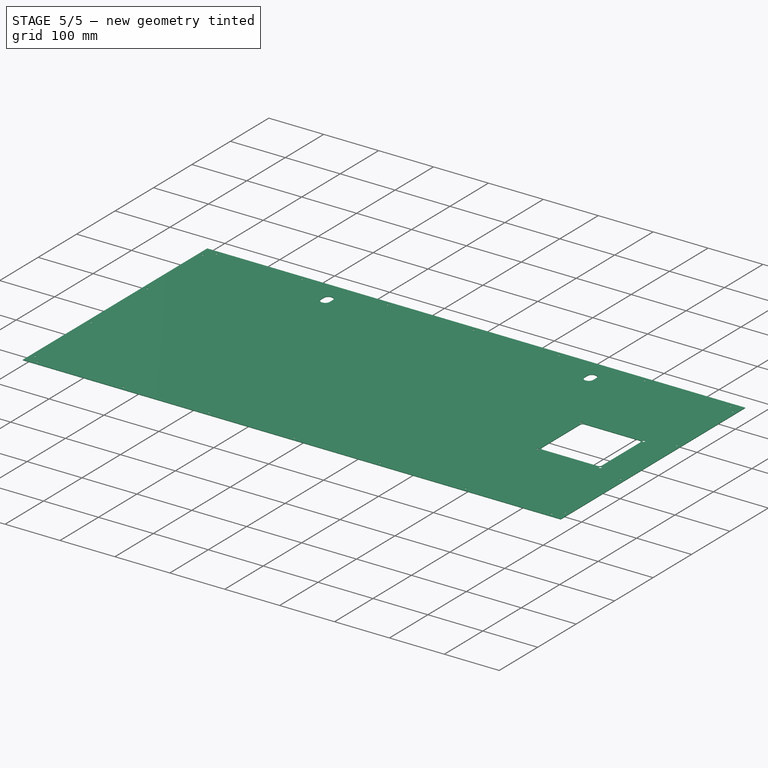
[diagram: stage 5 of 5 — iso view after this stage's code; geometry added in this stage tinted green]
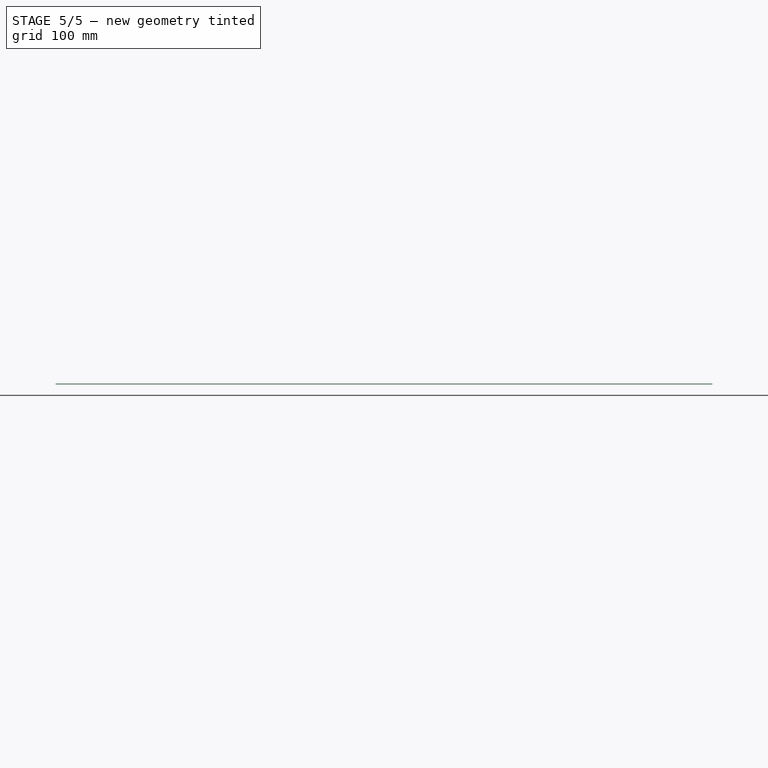
[diagram: stage 5 of 5 — front view after this stage's code; geometry added in this stage tinted green]
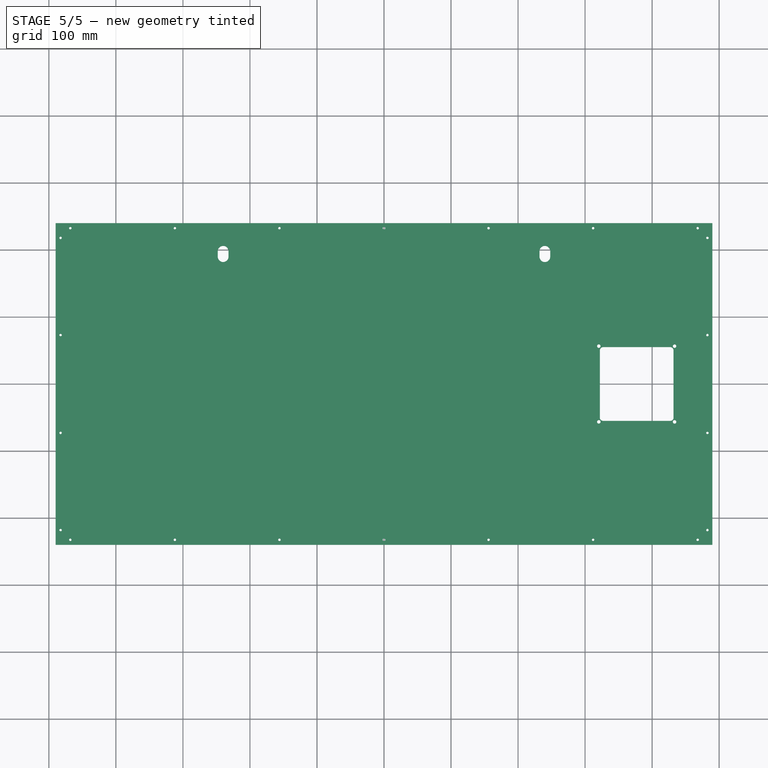
[diagram: stage 5 of 5 — top view after this stage's code; geometry added in this stage tinted green]
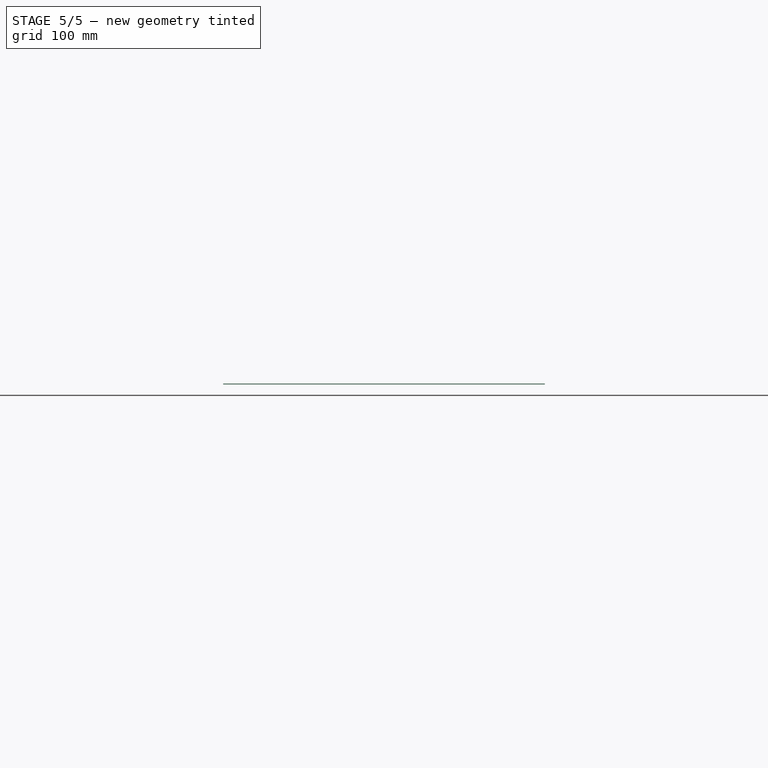
[diagram: stage 5 of 5 — right view after this stage's code; geometry added in this stage tinted green]
FEATURE [Sketcher::SketchObject] Sketch
  FullyConstrained = true
  MapMode = 5
  Support = -> [XY_Plane]
  sketch-geometry (4):
    g0: LineSegment StartX=-490 StartY=240 StartZ=0 EndX=490 EndY=240 EndZ=0
    g1: LineSegment StartX=490 StartY=240 StartZ=0 EndX=490 EndY=-240 EndZ=0
    g2: LineSegment StartX=490 StartY=-240 StartZ=0 EndX=-490 EndY=-240 EndZ=0
    g3: LineSegment StartX=-490 StartY=-240 StartZ=0 EndX=-490 EndY=240 EndZ=0
  constraints (10):
    c: Coincident(g0,g1)
    c: Coincident(g1,g2)
    c: Coincident(g2,g3)
    c: Coincident(g3,g0)
    c: Horizontal(g2)
    c: Vertical(g1)
    c: Symmetric(g0,g2,g-1)
    c: Symmetric(g0,g0,g-2)
    c: DistanceX(g0,g0) = 980
    c: DistanceY(g2,g0) = 480
FEATURE [PartDesign::Pad] Pad  label="Face"
  Direction = (0,0,1)
  Length = 1
  Length2 = 10
  Profile = -> Sketch
  ReferenceAxis = -> Sketch [N_Axis]
  Type = 0
FEATURE [Sketcher::SketchObject] Sketch001
  ExternalGeometry = -> [Pad]
  FullyConstrained = true
  MapMode = 5
  Placement = pos=(0,0,1) rot=(0,0,1;0rad)
  Support = -> [Pad]
  sketch-geometry (22):
    g0: Circle CenterX=0 CenterY=232.5 CenterZ=0 NormalX=0 NormalY=0 NormalZ=1 AngleXU=0 Radius=1.8
    g1: Circle CenterX=156 CenterY=232.5 CenterZ=0 NormalX=0 NormalY=0 NormalZ=1 AngleXU=0 Radius=1.8
    g2: Circle CenterX=312 CenterY=232.5 CenterZ=0 NormalX=0 NormalY=0 NormalZ=1 AngleXU=0 Radius=1.8
    g3: Circle CenterX=468 CenterY=232.5 CenterZ=0 NormalX=0 NormalY=0 NormalZ=1 AngleXU=0 Radius=1.8
    g4: Circle CenterX=-156 CenterY=232.5 CenterZ=0 NormalX=0 NormalY=0 NormalZ=1 AngleXU=0 Radius=1.8
    g5: Circle CenterX=-312 CenterY=232.5 CenterZ=0 NormalX=0 NormalY=0 NormalZ=1 AngleXU=0 Radius=1.8
    g6: Circle CenterX=-468 CenterY=232.5 CenterZ=0 NormalX=0 NormalY=0 NormalZ=1 AngleXU=0 Radius=1.8
    g7: Circle CenterX=482.5 CenterY=73 CenterZ=0 NormalX=0 NormalY=0 NormalZ=1 AngleXU=0 Radius=1.8
    g8: Circle CenterX=482.5 CenterY=218 CenterZ=0 NormalX=0 NormalY=0 NormalZ=1 AngleXU=0 Radius=1.8
    g9: Circle CenterX=-482.5 CenterY=218 CenterZ=0 NormalX=0 NormalY=0 NormalZ=1 AngleXU=0 Radius=1.8
    g10: Circle CenterX=-482.5 CenterY=73 CenterZ=0 NormalX=0 NormalY=0 NormalZ=1 AngleXU=0 Radius=1.8
    g11: Circle CenterX=-468 CenterY=-232.5 CenterZ=0 NormalX=0 NormalY=0 NormalZ=1 AngleXU=0 Radius=1.8
    g12: Circle CenterX=-312 CenterY=-232.5 CenterZ=0 NormalX=0 NormalY=0 NormalZ=1 AngleXU=0 Radius=1.8
    g13: Circle CenterX=-156 CenterY=-232.5 CenterZ=0 NormalX=0 NormalY=0 NormalZ=1 AngleXU=0 Radius=1.8
    g14: Circle CenterX=0 CenterY=-232.5 CenterZ=0 NormalX=0 NormalY=0 NormalZ=1 AngleXU=0 Radius=1.8
    g15: Circle CenterX=156 CenterY=-232.5 CenterZ=0 NormalX=0 NormalY=0 NormalZ=1 AngleXU=0 Radius=1.8
    g16: Circle CenterX=312 CenterY=-232.5 CenterZ=0 NormalX=0 NormalY=0 NormalZ=1 AngleXU=0 Radius=1.8
    g17: Circle CenterX=468 CenterY=-232.5 CenterZ=0 NormalX=0 NormalY=0 NormalZ=1 AngleXU=0 Radius=1.8
    g18: Circle CenterX=482.5 CenterY=-218 CenterZ=0 NormalX=0 NormalY=0 NormalZ=1 AngleXU=0 Radius=1.8
    g19: Circle CenterX=-482.5 CenterY=-218 CenterZ=0 NormalX=0 NormalY=0 NormalZ=1 AngleXU=0 Radius=1.8
    g20: Circle CenterX=482.5 CenterY=-73 CenterZ=0 NormalX=0 NormalY=0 NormalZ=1 AngleXU=0 Radius=1.8
    g21: Circle CenterX=-482.5 CenterY=-73 CenterZ=0 NormalX=0 NormalY=0 NormalZ=1 AngleXU=0 Radius=1.8
  constraints (66):
    c: PointOnObject(g0,g-2)
    c: DistanceY(g0,g-5) = 7.5
    c: Diameter(g0) = 3.6
    c: Horizontal(g1,g0)
    c: Equal(g1,g0)
    c: DistanceX(g0,g1) = 156
    c: Horizontal(g2,g1)
    c: Equal(g2,g1)
    c: DistanceX(g1,g2) = 156
    c: Horizontal(g3,g2)
    c: Equal(g2,g3)
    c: DistanceX(g2,g3) = 156
    c: Equal(g5,g4)
    c: Equal(g5,g6)
    c: Horizontal(g4,g0)
    c: Horizontal(g4,g5)
    c: Horizontal(g5,g6)
    c: DistanceX(g4,g0) = 156
    c: DistanceX(g5,g4) = 156
    c: DistanceX(g6,g5) = 156
    c: DistanceX(g7,g-5) = 7.5
    c: Diameter(g7) = 3.6
    c: Vertical(g7,g8)
    c: Equal(g8,g7)
    c: Diameter(g10) = 3.6
    c: Equal(g9,g10)
    c: DistanceX(g-4,g10) = 7.5
    c: Vertical(g9,g10)
    c: DistanceY(g10,g9) = 145
    c: Diameter(g14) = 3.6
    c: Equal(g15,g14)
    c: Equal(g16,g15)
    c: Equal(g16,g17)
    c: Equal(g12,g13)
    c: Equal(g12,g11)
    c: Horizontal(g11,g12)
    c: DistanceX(g11,g12) = 156
    c: Horizontal(g12,g13)
    c: DistanceX(g12,g13) = 156
    c: Horizontal(g13,g14)
    c: DistanceX(g13,g14) = 156
    c: Horizontal(g14,g15)
    c: DistanceX(g14,g15) = 156
    c: Horizontal(g15,g16)
    c: DistanceX(g15,g16) = 156
    c: Horizontal(g16,g17)
    c: DistanceX(g16,g17) = 156
    c: Vertical(g7,g18)
    c: Equal(g18,g7)
    c: DistanceY(g-6,g14) = 7.5
    c: Equal(g0,g4)
    c: PointOnObject(g14,g-2)
    c: Equal(g14,g13)
    c: DistanceY(g9,g-4) = 22
    c: DistanceY(g-6,g19) = 22
    c: DistanceY(g8,g-5) = 22
    c: DistanceY(g7,g8) = 145
    c: DistanceY(g-6,g18) = 22
    c: Equal(g7,g20)
    c: Vertical(g20,g7)
    c: DistanceY(g18,g20) = 145
    c: Equal(g10,g21)
    c: Equal(g21,g19)
    c: Vertical(g10,g21)
    c: Vertical(g21,g19)
    c: DistanceY(g19,g21) = 145
FEATURE [PartDesign::Pocket] Pocket  label="FurosFechamento"
  BaseFeature = -> Pad
  Direction = (0,0,-1)
  Length = 5
  Length2 = 5
  Profile = -> Sketch001
  ReferenceAxis = -> Sketch001 [N_Axis]
  Type = 1
FEATURE [PartDesign::Body] Body002
  Group = -> [Sketch022,Pad006,Sketch023,Pocket014,Sketch024,Pocket002,Sketch025,Pocket015,Sketch026,Pad007,LinearPattern,Fillet001,Fillet002,Fillet003]
  Origin = -> Origin002
  Placement = pos=(35,0,-32) rot=(0,1,0;3.14159rad)
  Tip = -> Fillet003
FEATURE [Sketcher::SketchObject] Sketch027
  ExternalGeometry = -> [Binder001]
  FullyConstrained = true
  MapMode = 5
  Placement = pos=(0,0,-30.74) rot=(0,0,1;0rad)
  Support = -> [Pocket012]
  sketch-geometry (4):
    g0: Circle CenterX=21 CenterY=-26 CenterZ=0 NormalX=0 NormalY=0 NormalZ=1 AngleXU=0 Radius=2.5
    g1: Circle CenterX=-20.5 CenterY=-26 CenterZ=0 NormalX=0 NormalY=0 NormalZ=1 AngleXU=0 Radius=2.5
    g2: Circle CenterX=21 CenterY=26 CenterZ=0 NormalX=0 NormalY=0 NormalZ=1 AngleXU=0 Radius=2.5
    g3: Circle CenterX=-20.5 CenterY=26 CenterZ=0 NormalX=0 NormalY=0 NormalZ=1 AngleXU=0 Radius=2.5
  constraints (8):
    c: Coincident(g0,g-5)
    c: Coincident(g1,g-6)
    c: Coincident(g2,g-3)
    c: Coincident(g3,g-4)
    c: Equal(g3,g2)
    c: Equal(g2,g1)
    c: Equal(g1,g0)
    c: Diameter(g2) = 5
FEATURE [PartDesign::Pad] Pad008  label="PorcasFurosTraseiros"
  BaseFeature = -> Pocket012
  Direction = (0,0,1)
  Length = 2.5
  Length2 = 10
  Profile = -> Sketch027
  ReferenceAxis = -> Sketch027 [N_Axis]
  Type = 0
FEATURE [Sketcher::SketchObject] Sketch028
  ExternalGeometry = -> [Binder001]
  FullyConstrained = true
  MapMode = 5
  Placement = pos=(0,0,-32) rot=(1,0,0;3.14159rad)
  Support = -> [Pad008]
  sketch-geometry (4):
    g0: Circle CenterX=21 CenterY=-26 CenterZ=0 NormalX=0 NormalY=0 NormalZ=1 AngleXU=0 Radius=1.1
    g1: Circle CenterX=-20.5 CenterY=-26 CenterZ=0 NormalX=0 NormalY=0 NormalZ=1 AngleXU=0 Radius=1.1
    g2: Circle CenterX=21 CenterY=26 CenterZ=0 NormalX=0 NormalY=0 NormalZ=1 AngleXU=0 Radius=1.1
    g3: Circle CenterX=-20.5 CenterY=26 CenterZ=0 NormalX=0 NormalY=0 NormalZ=1 AngleXU=0 Radius=1.1
  constraints (8):
    c: Coincident(g0,g-5)
    c: Coincident(g1,g-6)
    c: Coincident(g2,g-3)
    c: Coincident(g3,g-4)
    c: Equal(g2,g3)
    c: Equal(g3,g0)
    c: Equal(g0,g1)
    c: Diameter(g0) = 2.2
FEATURE [PartDesign::Pocket] Pocket016  label="FurosTraseiros"
  BaseFeature = -> Pad008
  Direction = (0,0,1)
  Length = 3
  Length2 = 5
  Profile = -> Sketch028
  ReferenceAxis = -> Sketch028 [N_Axis]
  Type = 0
FEATURE [PartDesign::Body] Body001
  Group = -> [Sketch002,Pad001,Sketch003,Pad002,Sketch004,Pad003,Sketch005,Pocket001,Sketch006,Sketch007,Pocket003,Sketch008,Pocket004,Pocket009,Sketch018,Groove,Sketch019,Pocket011,Sketch020,Pocket012,Binder001,Sketch027,Pad008,Sketch028,Pocket016]
  Origin = -> Origin001
  Tip = -> Pocket016
FEATURE [App::LinkGroup] LinkGroup  label="BackPocket"
  ElementList = -> [Body001,Body002]
  LinkMode = 0
  Placement = pos=(377,-4.52995e-05,3.00001) rot=(0,0,1;0rad)
FEATURE [PartDesign::SubShapeBinder] Binder  label="BinderRasgo"
  BindCopyOnChange = 0
  BindMode = 0
  ClaimChildren = false
  Context = -> Body [Binder.]
  Fuse = false
  MakeFace = true
  OffsetFill = false
  OffsetIntersection = false
  OffsetJoinType = 0
  OffsetOpenResult = false
  PartialLoad = false
  Relative = true
  Support = -> [LinkGroup[Body001.Pocket016.Face39]]
  _Version = 2
FEATURE [Sketcher::SketchObject] Sketch029
  ExternalGeometry = -> [Binder]
  FullyConstrained = true
  MapMode = 5
  Placement = pos=(0,0,1) rot=(0,0,1;0rad)
  Support = -> [Pocket]
  sketch-geometry (8):
    g0: ArcOfCircle CenterX=327 CenterY=50 CenterZ=0 NormalX=0 NormalY=0 NormalZ=1 AngleXU=0 Radius=5 StartAngle=1.5708 EndAngle=3.14159
    g1: ArcOfCircle CenterX=427 CenterY=50 CenterZ=0 NormalX=0 NormalY=0 NormalZ=1 AngleXU=0 Radius=5 StartAngle=5e-16 EndAngle=1.5708
    g2: ArcOfCircle CenterX=427 CenterY=-50 CenterZ=0 NormalX=0 NormalY=0 NormalZ=1 AngleXU=0 Radius=5 StartAngle=4.71239 EndAngle=6.28319
    g3: ArcOfCircle CenterX=327 CenterY=-50 CenterZ=0 NormalX=0 NormalY=0 NormalZ=1 AngleXU=0 Radius=5 StartAngle=3.14159 EndAngle=4.71239
    g4: LineSegment StartX=322 StartY=-50 StartZ=0 EndX=322 EndY=50 EndZ=0
    g5: LineSegment StartX=327 StartY=-55 StartZ=0 EndX=427 EndY=-55 EndZ=0
    g6: LineSegment StartX=432 StartY=-50 StartZ=0 EndX=432 EndY=50 EndZ=0
    g7: LineSegment StartX=327 StartY=55 StartZ=0 EndX=427 EndY=55 EndZ=0
  constraints (19):
    c: Coincident(g0,g-3)
    c: Coincident(g2,g-4)
    c: Equal(g0,g1)
    c: Equal(g1,g2)
    c: Equal(g2,g3)
    c: Horizontal(g2,g3)
    c: Vertical(g3,g0)
    c: Horizontal(g0,g1)
    c: Vertical(g1,g2)
    c: Vertical(g4)
    c: Diameter(g0) = 10
    c: Tangent(g2,g6) = -1.5708
    c: Tangent(g2,g5) = -1.5708
    c: Tangent(g1,g6) = -1.5708
    c: Coincident(g0,g4)
    c: Tangent(g0,g7) = 1.5708
    c: Tangent(g3,g5) = -1.5708
    c: Tangent(g3,g4) = 1.5708
    c: Tangent(g1,g7) = 1.5708
FEATURE [PartDesign::SubShapeBinder] Binder002  label="BinderFurosPocket"
  BindCopyOnChange = 0
  BindMode = 0
  ClaimChildren = false
  Context = -> Body [Binder002.]
  Fuse = false
  MakeFace = true
  OffsetFill = false
  OffsetIntersection = false
  OffsetJoinType = 0
  OffsetOpenResult = false
  PartialLoad = false
  Relative = true
  Support = -> [LinkGroup[Body001.Pocket016.Face4]]
  _Version = 2
FEATURE [Sketcher::SketchObject] Sketch030
  ExternalGeometry = -> [Binder002]
  FullyConstrained = false
  MapMode = 5
  Placement = pos=(0,0,1) rot=(0,0,1;0rad)
  sketch-geometry (4):
    g0: Circle CenterX=320.5 CenterY=-56.5 CenterZ=0 NormalX=0 NormalY=0 NormalZ=1 AngleXU=0 Radius=2.6
    g1: Circle CenterX=433.5 CenterY=-56.5 CenterZ=0 NormalX=0 NormalY=0 NormalZ=1 AngleXU=0 Radius=2.6
    g2: Circle CenterX=320.5 CenterY=56.5 CenterZ=0 NormalX=0 NormalY=0 NormalZ=1 AngleXU=0 Radius=2.6
    g3: Circle CenterX=433.5 CenterY=56.5 CenterZ=0 NormalX=0 NormalY=0 NormalZ=1 AngleXU=0 Radius=2.6
  constraints (7):
    c: Coincident(g0,g-5)
    c: Coincident(g1,g-6)
    c: Coincident(g2,g-4)
    c: Coincident(g3,g-3)
    c: Equal(g3,g2)
    c: Equal(g2,g1)
    c: Equal(g1,g0)
FEATURE [PartDesign::Pocket] Pocket018
  BaseFeature = -> Pocket
  Direction = (0,0,-1)
  Length = 5
  Length2 = 5
  Profile = -> Sketch030
  ReferenceAxis = -> Sketch030 [N_Axis]
  Type = 1
FEATURE [PartDesign::Pocket] Pocket019
  BaseFeature = -> Pocket018
  Direction = (0,0,-1)
  Length = 5
  Length2 = 5
  Profile = -> Sketch029
  ReferenceAxis = -> Sketch029 [N_Axis]
  Type = 1
FEATURE [PartDesign::Body] Body004  label="HangHole2"
  Group = -> [Sketch034,Pad011,Sketch035,Pocket021,Sketch036,Pad012,Chamfer001]
  Origin = -> Origin004
  Placement = pos=(-240,190,2) rot=(0,0,1;0rad)
  Tip = -> Chamfer001
FEATURE [PartDesign::SubShapeBinder] Binder003  label="BinderHangHoles"
  BindCopyOnChange = 0
  BindMode = 0
  ClaimChildren = false
  Context = -> Body [Binder003.]
  Fuse = false
  MakeFace = true
  OffsetFill = false
  OffsetIntersection = false
  OffsetJoinType = 0
  OffsetOpenResult = false
  PartialLoad = false
  Relative = true
  Support = -> [Body003[Chamfer.Face13],Body004[Chamfer001.Face13]]
  _Version = 2
FEATURE [Sketcher::SketchObject] Sketch037
  ExternalGeometry = -> [Binder003]
  FullyConstrained = true
  MapMode = 5
  Placement = pos=(0,0,1) rot=(0,0,1;0rad)
  Support = -> [Pocket019]
  sketch-geometry (8):
    g0: ArcOfCircle CenterX=240 CenterY=190 CenterZ=0 NormalX=0 NormalY=0 NormalZ=1 AngleXU=0 Radius=8 StartAngle=3.14159 EndAngle=6.28319
    g1: LineSegment StartX=232 StartY=190 StartZ=0 EndX=232 EndY=198 EndZ=0
    g2: LineSegment StartX=248 StartY=190 StartZ=0 EndX=248 EndY=198 EndZ=0
    g3: ArcOfCircle CenterX=240 CenterY=198 CenterZ=0 NormalX=0 NormalY=0 NormalZ=1 AngleXU=0 Radius=8 StartAngle=5e-16 EndAngle=3.14159
    g4: LineSegment StartX=-232 StartY=190 StartZ=0 EndX=-232 EndY=198 EndZ=0
    g5: ArcOfCircle CenterX=-240 CenterY=190 CenterZ=0 NormalX=0 NormalY=0 NormalZ=1 AngleXU=0 Radius=8 StartAngle=3.14159 EndAngle=6.28319
    g6: LineSegment StartX=-248 StartY=190 StartZ=0 EndX=-248 EndY=198 EndZ=0
    g7: ArcOfCircle CenterX=-240 CenterY=198 CenterZ=0 NormalX=0 NormalY=0 NormalZ=1 AngleXU=0 Radius=8 StartAngle=8e-16 EndAngle=3.14159
  constraints (17):
    c: Coincident(g0,g-8)
    c: Vertical(g1)
    c: Coincident(g3,g1) = 1.5708
    c: Tangent(g0,g2) = -1.5708
    c: Tangent(g0,g1) = 1.5708
    c: Tangent(g3,g2) = -1.5708
    c: Tangent(g1,g3) = 1.5708
    c: Coincident(g3,g-7)
    c: Vertical(g4)
    c: Tangent(g5,g6) = 1.5708
    c: Tangent(g5,g4) = -1.5708
    c: Tangent(g7,g6) = 1.5708
    c: Coincident(g7,g-3)
    c: Tangent(g7,g4) = -1.5708
    c: Coincident(g5,g-4)
    c: Diameter(g5) = 16
    c: Diameter(g0) = 16
FEATURE [PartDesign::Pocket] Pocket022  label="HangHoles"
  BaseFeature = -> Pocket019
  Direction = (0,0,-1)
  Length = 5
  Length2 = 5
  Profile = -> Sketch037
  ReferenceAxis = -> Sketch037 [N_Axis]
  Type = 1
FEATURE [PartDesign::Body] Body
  Group = -> [Sketch,Pad,Sketch001,Pocket,Binder,Sketch029,Binder002,Sketch030,Pocket018,Pocket019,Binder003,Sketch037,Pocket022]
  Origin = -> Origin
  Tip = -> Pocket022
FEATURE [App::LinkGroup] LinkGroup001
  ElementList = -> [Body003,Body004]
  LinkMode = 0
  Placement = pos=(0,0,-16) rot=(0,0,1;0rad)
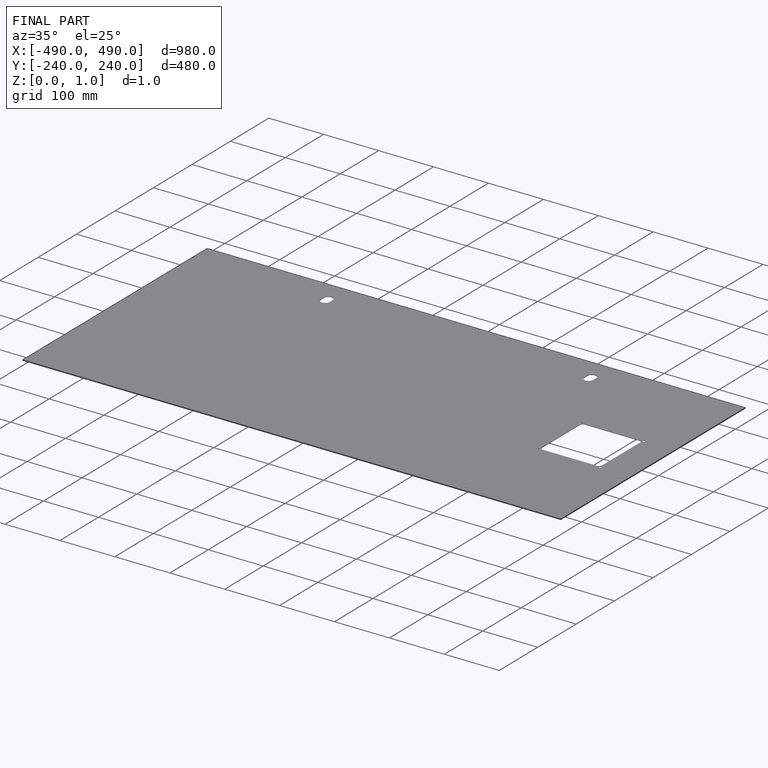
[diagram: finished part — iso view with bounding-box wireframe]
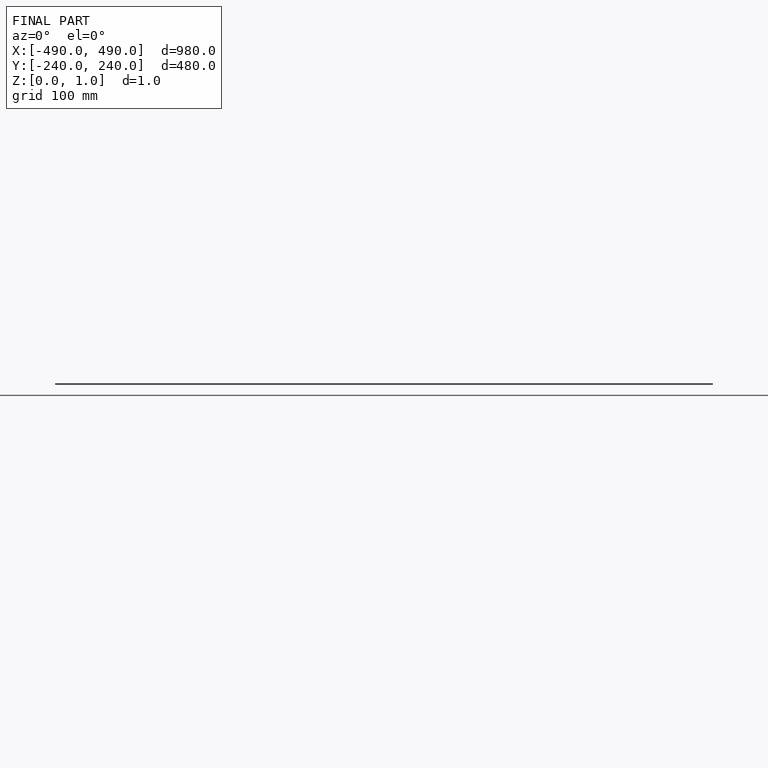
[diagram: finished part — front view with bounding-box wireframe]
